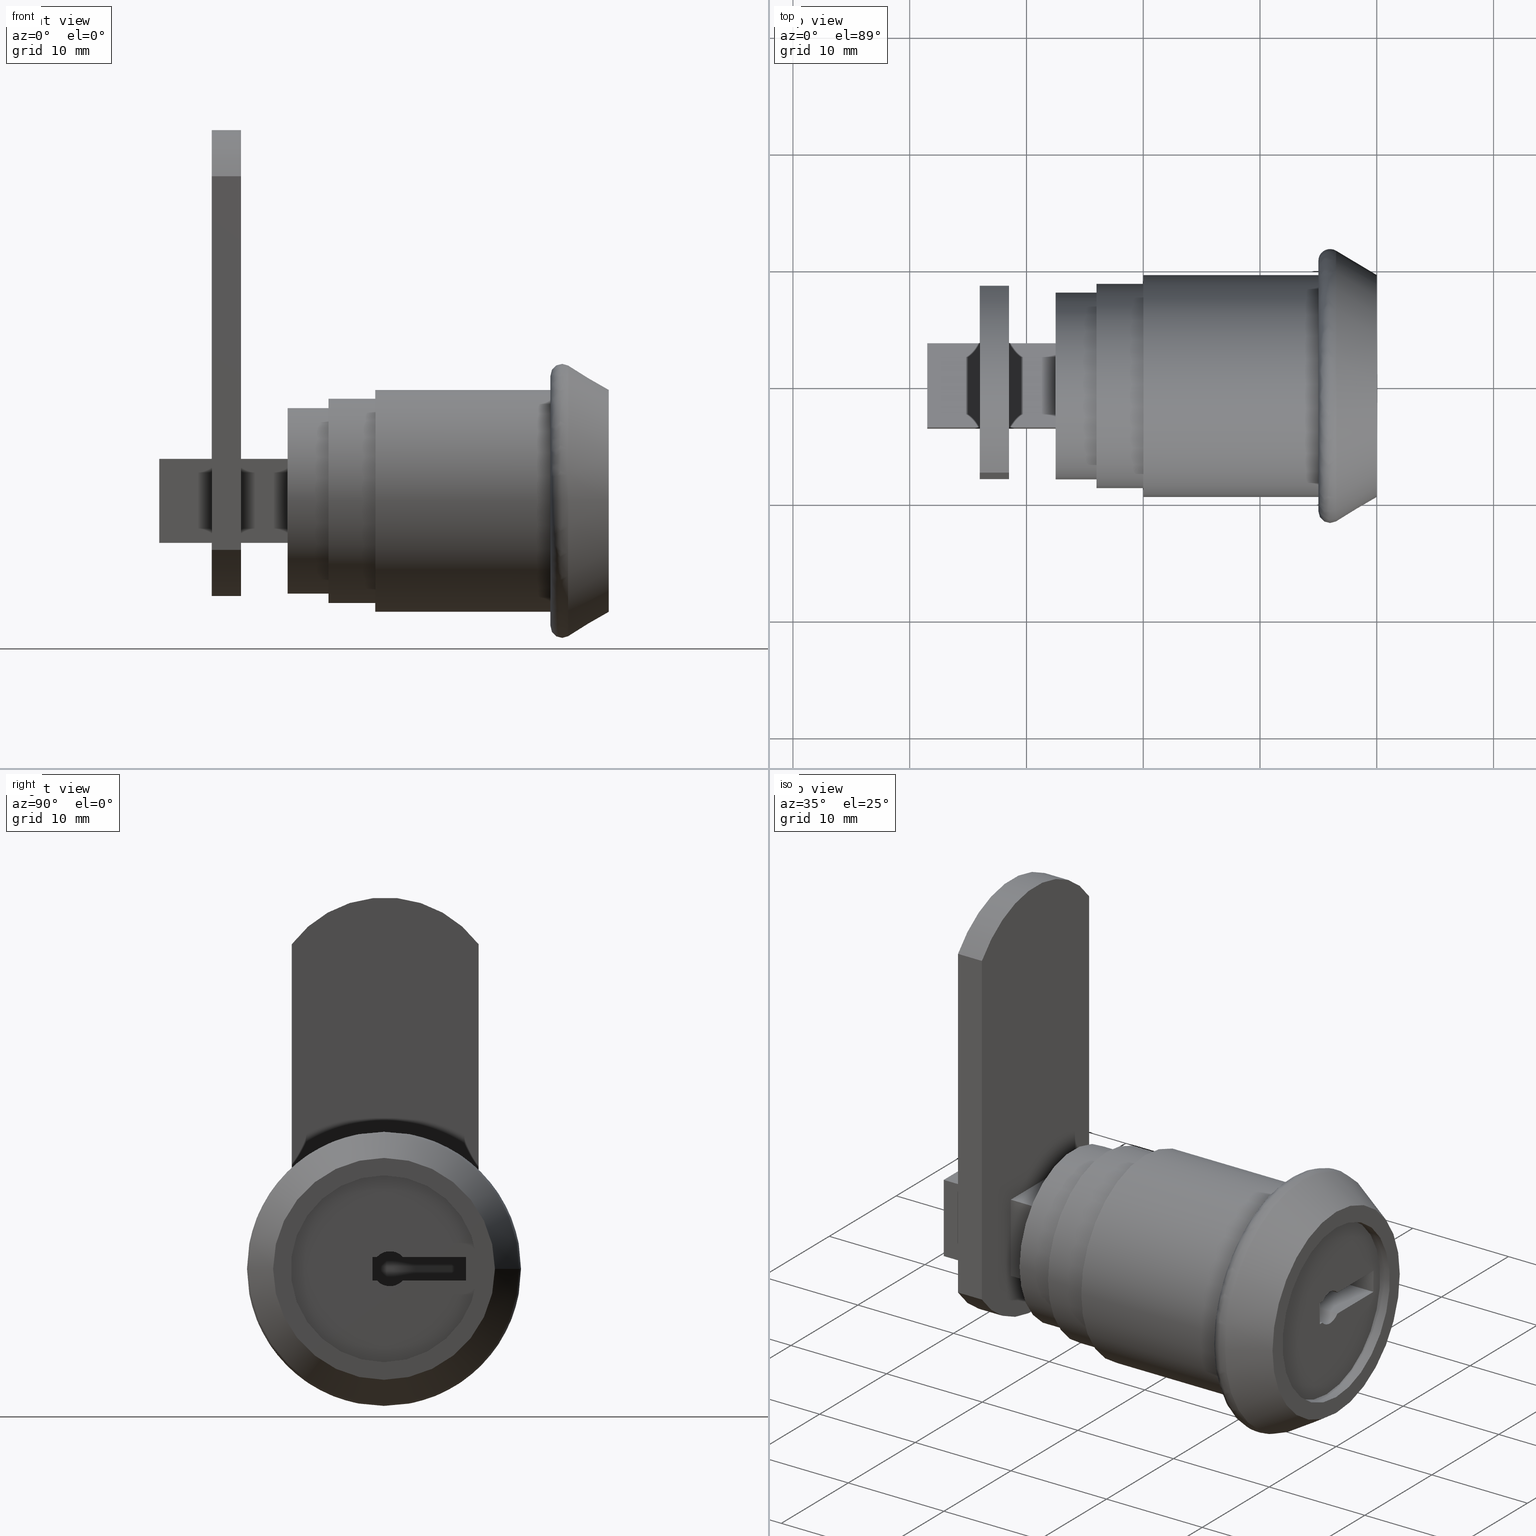
[diagram: canonical four-view strip — front | top / right | iso, engineering-drawing reading convention]
A machine part, canonical four-view strip (front | top / right | iso — engineering-drawing reading convention). The complete STEP part file that produces these views, byte-faithful:
ISO-10303-21;
HEADER;
/****************************************************************
 * Generated by software with PDE/Lib inside                    *
 * PDElib Version v4.4, created Mon 02/23/2004                  *
 * International Technegroup Inc. (www.iti-oh.com)              *
 ****************************************************************/
FILE_DESCRIPTION(('STEP AP203'),'2;1');
FILE_NAME('24.006.00.stp','2011-06-06T18:19:39',(''),(''),'2009.3.110','THINKDESIGN','');
FILE_SCHEMA(('CONFIG_CONTROL_DESIGN'));
ENDSEC;
DATA;
#2=CARTESIAN_POINT('',(-31.500000068700572,-7.900410203737295,-4.195817219909358));
#3=DIRECTION('',(0.0,-1.0,0.0));
#4=DIRECTION('',(0.0,0.0,1.0));
#5=AXIS2_PLACEMENT_3D('',#2,#3,#4);
#6=PLANE('',#5);
#7=CARTESIAN_POINT('',(-31.500000068700572,-7.900410203737295,-4.195817219909358));
#8=VERTEX_POINT('',#7);
#9=CARTESIAN_POINT('',(-31.500000068700558,-7.900410203737295,27.804182780090599));
#10=VERTEX_POINT('',#9);
#11=CARTESIAN_POINT('',(-31.500000068700572,-7.900410203737295,-4.195817219909358));
#12=DIRECTION('',(0.0,0.0,1.0));
#13=VECTOR('',#12,31.999999999999957);
#14=LINE('',#11,#13);
#15=EDGE_CURVE('',#8,#10,#14,.T.);
#16=ORIENTED_EDGE('',*,*,#15,.T.);
#17=CARTESIAN_POINT('',(-34.000000068700558,-7.900410203737295,27.804182780090599));
#18=VERTEX_POINT('',#17);
#19=CARTESIAN_POINT('',(-31.500000068700558,-7.900410203737295,27.804182780090599));
#20=DIRECTION('',(-1.0,0.0,0.0));
#21=VECTOR('',#20,2.500000000000000);
#22=LINE('',#19,#21);
#23=EDGE_CURVE('',#10,#18,#22,.T.);
#24=ORIENTED_EDGE('',*,*,#23,.T.);
#25=CARTESIAN_POINT('',(-34.000000068700572,-7.900410203737295,-4.195817219909358));
#26=VERTEX_POINT('',#25);
#27=CARTESIAN_POINT('',(-34.000000068700572,-7.900410203737295,-4.195817219909358));
#28=DIRECTION('',(0.0,0.0,1.0));
#29=VECTOR('',#28,31.999999999999957);
#30=LINE('',#27,#29);
#31=EDGE_CURVE('',#26,#18,#30,.T.);
#32=ORIENTED_EDGE('',*,*,#31,.F.);
#33=CARTESIAN_POINT('',(-31.500000068700572,-7.900410203737295,-4.195817219909358));
#34=DIRECTION('',(-1.0,0.0,0.0));
#35=VECTOR('',#34,2.500000000000000);
#36=LINE('',#33,#35);
#37=EDGE_CURVE('',#8,#26,#36,.T.);
#38=ORIENTED_EDGE('',*,*,#37,.F.);
#39=EDGE_LOOP('',(#16,#24,#32,#38));
#40=FACE_OUTER_BOUND('',#39,.T.);
#41=ADVANCED_FACE('',(#40),#6,.T.);
#42=CARTESIAN_POINT('',(-31.500000068700558,0.099589796262734,21.804182780090628));
#43=DIRECTION('',(-1.0,0.0,6.123234E-017));
#44=DIRECTION('',(3.673940E-017,-0.800000000000001,0.599999999999999));
#45=AXIS2_PLACEMENT_3D('',#42,#43,#44);
#46=CYLINDRICAL_SURFACE('',#45,10.0);
#47=CARTESIAN_POINT('',(-31.500000068700558,8.099589796262734,27.804182780090599));
#48=VERTEX_POINT('',#47);
#49=CARTESIAN_POINT('',(-31.500000068700558,0.099589796262734,21.804182780090628));
#50=DIRECTION('',(-1.0,0.0,6.123234E-017));
#51=DIRECTION('',(6.123234E-017,0.0,1.0));
#52=AXIS2_PLACEMENT_3D('',#49,#50,#51);
#53=CIRCLE('',#52,10.0);
#54=EDGE_CURVE('',#10,#48,#53,.T.);
#55=ORIENTED_EDGE('',*,*,#54,.T.);
#56=CARTESIAN_POINT('',(-34.000000068700558,8.099589796262734,27.804182780090599));
#57=VERTEX_POINT('',#56);
#58=CARTESIAN_POINT('',(-31.500000068700558,8.099589796262734,27.804182780090599));
#59=DIRECTION('',(-1.0,0.0,0.0));
#60=VECTOR('',#59,2.500000000000000);
#61=LINE('',#58,#60);
#62=EDGE_CURVE('',#48,#57,#61,.T.);
#63=ORIENTED_EDGE('',*,*,#62,.T.);
#64=CARTESIAN_POINT('',(-34.000000068700558,0.099589796262734,21.804182780090628));
#65=DIRECTION('',(-1.0,0.0,6.123234E-017));
#66=DIRECTION('',(6.123234E-017,0.0,1.0));
#67=AXIS2_PLACEMENT_3D('',#64,#65,#66);
#68=CIRCLE('',#67,10.0);
#69=EDGE_CURVE('',#18,#57,#68,.T.);
#70=ORIENTED_EDGE('',*,*,#69,.F.);
#71=ORIENTED_EDGE('',*,*,#23,.F.);
#72=EDGE_LOOP('',(#55,#63,#70,#71));
#73=FACE_OUTER_BOUND('',#72,.T.);
#74=ADVANCED_FACE('',(#73),#46,.T.);
#75=CARTESIAN_POINT('',(-31.500000068700558,8.099589796262734,27.804182780090599));
#76=DIRECTION('',(0.0,1.0,0.0));
#77=DIRECTION('',(0.0,0.0,-1.0));
#78=AXIS2_PLACEMENT_3D('',#75,#76,#77);
#79=PLANE('',#78);
#80=CARTESIAN_POINT('',(-31.500000068700572,8.099589796262762,-4.195817219909344));
#81=VERTEX_POINT('',#80);
#82=CARTESIAN_POINT('',(-31.500000068700569,8.099589796262734,27.804182780090599));
#83=DIRECTION('',(0.0,0.0,-1.0));
#84=VECTOR('',#83,31.999999999999957);
#85=LINE('',#82,#84);
#86=EDGE_CURVE('',#48,#81,#85,.T.);
#87=ORIENTED_EDGE('',*,*,#86,.T.);
#88=CARTESIAN_POINT('',(-34.000000068700572,8.099589796262762,-4.195817219909344));
#89=VERTEX_POINT('',#88);
#90=CARTESIAN_POINT('',(-31.500000068700572,8.099589796262762,-4.195817219909344));
#91=DIRECTION('',(-1.0,0.0,0.0));
#92=VECTOR('',#91,2.500000000000000);
#93=LINE('',#90,#92);
#94=EDGE_CURVE('',#81,#89,#93,.T.);
#95=ORIENTED_EDGE('',*,*,#94,.T.);
#96=CARTESIAN_POINT('',(-34.000000068700572,8.099589796262734,27.804182780090599));
#97=DIRECTION('',(0.0,0.0,-1.0));
#98=VECTOR('',#97,31.999999999999957);
#99=LINE('',#96,#98);
#100=EDGE_CURVE('',#57,#89,#99,.T.);
#101=ORIENTED_EDGE('',*,*,#100,.F.);
#102=ORIENTED_EDGE('',*,*,#62,.F.);
#103=EDGE_LOOP('',(#87,#95,#101,#102));
#104=FACE_OUTER_BOUND('',#103,.T.);
#105=ADVANCED_FACE('',(#104),#79,.T.);
#106=CARTESIAN_POINT('',(-31.500000068700572,0.099589796262734,1.804182780090627));
#107=DIRECTION('',(-1.0,0.0,6.123234E-017));
#108=DIRECTION('',(6.123234E-017,0.0,1.0));
#109=AXIS2_PLACEMENT_3D('',#106,#107,#108);
#110=CYLINDRICAL_SURFACE('',#109,10.0);
#111=CARTESIAN_POINT('',(-31.500000068700572,0.099589796262734,1.804182780090627));
#112=DIRECTION('',(-1.0,0.0,6.123234E-017));
#113=DIRECTION('',(6.123234E-017,0.0,1.0));
#114=AXIS2_PLACEMENT_3D('',#111,#112,#113);
#115=CIRCLE('',#114,10.0);
#116=EDGE_CURVE('',#81,#8,#115,.T.);
#117=ORIENTED_EDGE('',*,*,#116,.T.);
#118=ORIENTED_EDGE('',*,*,#37,.T.);
#119=CARTESIAN_POINT('',(-34.000000068700572,0.099589796262734,1.804182780090627));
#120=DIRECTION('',(-1.0,0.0,6.123234E-017));
#121=DIRECTION('',(6.123234E-017,0.0,1.0));
#122=AXIS2_PLACEMENT_3D('',#119,#120,#121);
#123=CIRCLE('',#122,10.0);
#124=EDGE_CURVE('',#89,#26,#123,.T.);
#125=ORIENTED_EDGE('',*,*,#124,.F.);
#126=ORIENTED_EDGE('',*,*,#94,.F.);
#127=EDGE_LOOP('',(#117,#118,#125,#126));
#128=FACE_OUTER_BOUND('',#127,.T.);
#129=ADVANCED_FACE('',(#128),#110,.T.);
#130=CARTESIAN_POINT('',(-31.500000068700572,-3.100000000000023,-3.599999999999995));
#131=DIRECTION('',(0.0,0.0,1.0));
#132=DIRECTION('',(0.0,1.0,0.0));
#133=AXIS2_PLACEMENT_3D('',#130,#131,#132);
#134=PLANE('',#133);
#135=CARTESIAN_POINT('',(-31.500000068700572,-3.100000000000023,-3.599999999999995));
#136=VERTEX_POINT('',#135);
#137=CARTESIAN_POINT('',(-31.500000068700572,3.099999999999966,-3.599999999999995));
#138=VERTEX_POINT('',#137);
#139=CARTESIAN_POINT('',(-31.500000068700572,-3.100000000000037,-3.599999999999995));
#140=DIRECTION('',(0.0,1.0,0.0));
#141=VECTOR('',#140,6.200000000000003);
#142=LINE('',#139,#141);
#143=EDGE_CURVE('',#136,#138,#142,.T.);
#144=ORIENTED_EDGE('',*,*,#143,.T.);
#145=CARTESIAN_POINT('',(-34.000000068700572,3.099999999999966,-3.599999999999995));
#146=VERTEX_POINT('',#145);
#147=CARTESIAN_POINT('',(-31.500000068700572,3.099999999999966,-3.599999999999995));
#148=DIRECTION('',(-1.0,0.0,0.0));
#149=VECTOR('',#148,2.500000000000000);
#150=LINE('',#147,#149);
#151=EDGE_CURVE('',#138,#146,#150,.T.);
#152=ORIENTED_EDGE('',*,*,#151,.T.);
#153=CARTESIAN_POINT('',(-34.000000068700572,-3.100000000000023,-3.599999999999995));
#154=VERTEX_POINT('',#153);
#155=CARTESIAN_POINT('',(-34.000000068700572,-3.100000000000037,-3.599999999999995));
#156=DIRECTION('',(0.0,1.0,0.0));
#157=VECTOR('',#156,6.200000000000003);
#158=LINE('',#155,#157);
#159=EDGE_CURVE('',#154,#146,#158,.T.);
#160=ORIENTED_EDGE('',*,*,#159,.F.);
#161=CARTESIAN_POINT('',(-31.500000068700572,-3.100000000000023,-3.599999999999995));
#162=DIRECTION('',(-1.0,0.0,0.0));
#163=VECTOR('',#162,2.500000000000000);
#164=LINE('',#161,#163);
#165=EDGE_CURVE('',#136,#154,#164,.T.);
#166=ORIENTED_EDGE('',*,*,#165,.F.);
#167=EDGE_LOOP('',(#144,#152,#160,#166));
#168=FACE_OUTER_BOUND('',#167,.T.);
#169=ADVANCED_FACE('',(#168),#134,.T.);
#170=CARTESIAN_POINT('',(-31.500000068700572,3.099999999999966,-3.099999999999995));
#171=DIRECTION('',(1.0,0.0,-6.123234E-017));
#172=DIRECTION('',(-6.123234E-017,1.010643E-015,-1.0));
#173=AXIS2_PLACEMENT_3D('',#170,#171,#172);
#174=CYLINDRICAL_SURFACE('',#173,0.500000000000000);
#175=CARTESIAN_POINT('',(-31.500000068700572,3.599999999999966,-3.100000000000009));
#176=VERTEX_POINT('',#175);
#177=CARTESIAN_POINT('',(-31.500000068700572,3.099999999999966,-3.099999999999995));
#178=DIRECTION('',(1.0,0.0,-6.123234E-017));
#179=DIRECTION('',(6.123234E-017,0.0,1.0));
#180=AXIS2_PLACEMENT_3D('',#177,#178,#179);
#181=CIRCLE('',#180,0.500000000000000);
#182=EDGE_CURVE('',#138,#176,#181,.T.);
#183=ORIENTED_EDGE('',*,*,#182,.T.);
#184=CARTESIAN_POINT('',(-34.000000068700572,3.599999999999966,-3.100000000000009));
#185=VERTEX_POINT('',#184);
#186=CARTESIAN_POINT('',(-31.500000068700572,3.599999999999966,-3.100000000000009));
#187=DIRECTION('',(-1.0,0.0,0.0));
#188=VECTOR('',#187,2.500000000000000);
#189=LINE('',#186,#188);
#190=EDGE_CURVE('',#176,#185,#189,.T.);
#191=ORIENTED_EDGE('',*,*,#190,.T.);
#192=CARTESIAN_POINT('',(-34.000000068700572,3.099999999999966,-3.099999999999995));
#193=DIRECTION('',(1.0,0.0,-6.123234E-017));
#194=DIRECTION('',(6.123234E-017,0.0,1.0));
#195=AXIS2_PLACEMENT_3D('',#192,#193,#194);
#196=CIRCLE('',#195,0.500000000000000);
#197=EDGE_CURVE('',#146,#185,#196,.T.);
#198=ORIENTED_EDGE('',*,*,#197,.F.);
#199=ORIENTED_EDGE('',*,*,#151,.F.);
#200=EDGE_LOOP('',(#183,#191,#198,#199));
#201=FACE_OUTER_BOUND('',#200,.T.);
#202=ADVANCED_FACE('',(#201),#174,.F.);
#203=CARTESIAN_POINT('',(-31.500000068700572,3.599999999999966,-3.100000000000009));
#204=DIRECTION('',(0.0,-1.0,0.0));
#205=DIRECTION('',(0.0,0.0,1.0));
#206=AXIS2_PLACEMENT_3D('',#203,#204,#205);
#207=PLANE('',#206);
#208=CARTESIAN_POINT('',(-31.500000068700572,3.599999999999966,3.099999999999994));
#209=VERTEX_POINT('',#208);
#210=CARTESIAN_POINT('',(-31.500000068700572,3.599999999999966,-3.100000000000009));
#211=DIRECTION('',(0.0,0.0,1.0));
#212=VECTOR('',#211,6.200000000000003);
#213=LINE('',#210,#212);
#214=EDGE_CURVE('',#176,#209,#213,.T.);
#215=ORIENTED_EDGE('',*,*,#214,.T.);
#216=CARTESIAN_POINT('',(-34.000000068700572,3.599999999999966,3.099999999999994));
#217=VERTEX_POINT('',#216);
#218=CARTESIAN_POINT('',(-31.500000068700572,3.599999999999966,3.099999999999994));
#219=DIRECTION('',(-1.0,0.0,0.0));
#220=VECTOR('',#219,2.500000000000000);
#221=LINE('',#218,#220);
#222=EDGE_CURVE('',#209,#217,#221,.T.);
#223=ORIENTED_EDGE('',*,*,#222,.T.);
#224=CARTESIAN_POINT('',(-34.000000068700572,3.599999999999966,-3.100000000000009));
#225=DIRECTION('',(0.0,0.0,1.0));
#226=VECTOR('',#225,6.200000000000003);
#227=LINE('',#224,#226);
#228=EDGE_CURVE('',#185,#217,#227,.T.);
#229=ORIENTED_EDGE('',*,*,#228,.F.);
#230=ORIENTED_EDGE('',*,*,#190,.F.);
#231=EDGE_LOOP('',(#215,#223,#229,#230));
#232=FACE_OUTER_BOUND('',#231,.T.);
#233=ADVANCED_FACE('',(#232),#207,.T.);
#234=CARTESIAN_POINT('',(-31.500000068700572,3.099999999999966,3.099999999999994));
#235=DIRECTION('',(1.0,0.0,-6.123234E-017));
#236=DIRECTION('',(3.697785E-032,1.0,5.053215E-016));
#237=AXIS2_PLACEMENT_3D('',#234,#235,#236);
#238=CYLINDRICAL_SURFACE('',#237,0.500000000000000);
#239=CARTESIAN_POINT('',(-31.500000068700572,3.099999999999966,3.599999999999994));
#240=VERTEX_POINT('',#239);
#241=CARTESIAN_POINT('',(-31.500000068700572,3.099999999999966,3.099999999999994));
#242=DIRECTION('',(1.0,0.0,-6.123234E-017));
#243=DIRECTION('',(6.123234E-017,0.0,1.0));
#244=AXIS2_PLACEMENT_3D('',#241,#242,#243);
#245=CIRCLE('',#244,0.500000000000000);
#246=EDGE_CURVE('',#209,#240,#245,.T.);
#247=ORIENTED_EDGE('',*,*,#246,.T.);
#248=CARTESIAN_POINT('',(-34.000000068700572,3.099999999999966,3.599999999999994));
#249=VERTEX_POINT('',#248);
#250=CARTESIAN_POINT('',(-31.500000068700572,3.099999999999966,3.599999999999994));
#251=DIRECTION('',(-1.0,0.0,0.0));
#252=VECTOR('',#251,2.500000000000000);
#253=LINE('',#250,#252);
#254=EDGE_CURVE('',#240,#249,#253,.T.);
#255=ORIENTED_EDGE('',*,*,#254,.T.);
#256=CARTESIAN_POINT('',(-34.000000068700572,3.099999999999966,3.099999999999994));
#257=DIRECTION('',(1.0,0.0,-6.123234E-017));
#258=DIRECTION('',(6.123234E-017,0.0,1.0));
#259=AXIS2_PLACEMENT_3D('',#256,#257,#258);
#260=CIRCLE('',#259,0.500000000000000);
#261=EDGE_CURVE('',#217,#249,#260,.T.);
#262=ORIENTED_EDGE('',*,*,#261,.F.);
#263=ORIENTED_EDGE('',*,*,#222,.F.);
#264=EDGE_LOOP('',(#247,#255,#262,#263));
#265=FACE_OUTER_BOUND('',#264,.T.);
#266=ADVANCED_FACE('',(#265),#238,.F.);
#267=CARTESIAN_POINT('',(-31.500000068700572,3.099999999999966,3.599999999999994));
#268=DIRECTION('',(0.0,0.0,-1.0));
#269=DIRECTION('',(0.0,-1.0,0.0));
#270=AXIS2_PLACEMENT_3D('',#267,#268,#269);
#271=PLANE('',#270);
#272=CARTESIAN_POINT('',(-31.500000068700572,-3.100000000000023,3.599999999999994));
#273=VERTEX_POINT('',#272);
#274=CARTESIAN_POINT('',(-31.500000068700572,3.099999999999980,3.599999999999994));
#275=DIRECTION('',(0.0,-1.0,0.0));
#276=VECTOR('',#275,6.200000000000003);
#277=LINE('',#274,#276);
#278=EDGE_CURVE('',#240,#273,#277,.T.);
#279=ORIENTED_EDGE('',*,*,#278,.T.);
#280=CARTESIAN_POINT('',(-34.000000068700572,-3.100000000000023,3.599999999999994));
#281=VERTEX_POINT('',#280);
#282=CARTESIAN_POINT('',(-31.500000068700572,-3.100000000000023,3.599999999999994));
#283=DIRECTION('',(-1.0,0.0,0.0));
#284=VECTOR('',#283,2.500000000000000);
#285=LINE('',#282,#284);
#286=EDGE_CURVE('',#273,#281,#285,.T.);
#287=ORIENTED_EDGE('',*,*,#286,.T.);
#288=CARTESIAN_POINT('',(-34.000000068700572,3.099999999999980,3.599999999999994));
#289=DIRECTION('',(0.0,-1.0,0.0));
#290=VECTOR('',#289,6.200000000000003);
#291=LINE('',#288,#290);
#292=EDGE_CURVE('',#249,#281,#291,.T.);
#293=ORIENTED_EDGE('',*,*,#292,.F.);
#294=ORIENTED_EDGE('',*,*,#254,.F.);
#295=EDGE_LOOP('',(#279,#287,#293,#294));
#296=FACE_OUTER_BOUND('',#295,.T.);
#297=ADVANCED_FACE('',(#296),#271,.T.);
#298=CARTESIAN_POINT('',(-31.500000068700572,-3.100000000000023,3.099999999999994));
#299=DIRECTION('',(1.0,0.0,-6.123234E-017));
#300=DIRECTION('',(6.123234E-017,0.0,1.0));
#301=AXIS2_PLACEMENT_3D('',#298,#299,#300);
#302=CYLINDRICAL_SURFACE('',#301,0.500000000000000);
#303=CARTESIAN_POINT('',(-31.500000068700572,-3.600000000000023,3.100000000000008));
#304=VERTEX_POINT('',#303);
#305=CARTESIAN_POINT('',(-31.500000068700572,-3.100000000000023,3.099999999999994));
#306=DIRECTION('',(1.0,0.0,-6.123234E-017));
#307=DIRECTION('',(6.123234E-017,0.0,1.0));
#308=AXIS2_PLACEMENT_3D('',#305,#306,#307);
#309=CIRCLE('',#308,0.500000000000000);
#310=EDGE_CURVE('',#273,#304,#309,.T.);
#311=ORIENTED_EDGE('',*,*,#310,.T.);
#312=CARTESIAN_POINT('',(-34.000000068700572,-3.600000000000023,3.100000000000008));
#313=VERTEX_POINT('',#312);
#314=CARTESIAN_POINT('',(-31.500000068700572,-3.600000000000023,3.100000000000008));
#315=DIRECTION('',(-1.0,0.0,0.0));
#316=VECTOR('',#315,2.500000000000000);
#317=LINE('',#314,#316);
#318=EDGE_CURVE('',#304,#313,#317,.T.);
#319=ORIENTED_EDGE('',*,*,#318,.T.);
#320=CARTESIAN_POINT('',(-34.000000068700572,-3.100000000000023,3.099999999999994));
#321=DIRECTION('',(1.0,0.0,-6.123234E-017));
#322=DIRECTION('',(6.123234E-017,0.0,1.0));
#323=AXIS2_PLACEMENT_3D('',#320,#321,#322);
#324=CIRCLE('',#323,0.500000000000000);
#325=EDGE_CURVE('',#281,#313,#324,.T.);
#326=ORIENTED_EDGE('',*,*,#325,.F.);
#327=ORIENTED_EDGE('',*,*,#286,.F.);
#328=EDGE_LOOP('',(#311,#319,#326,#327));
#329=FACE_OUTER_BOUND('',#328,.T.);
#330=ADVANCED_FACE('',(#329),#302,.F.);
#331=CARTESIAN_POINT('',(-31.500000068700572,-3.600000000000023,3.100000000000008));
#332=DIRECTION('',(0.0,1.0,0.0));
#333=DIRECTION('',(0.0,0.0,-1.0));
#334=AXIS2_PLACEMENT_3D('',#331,#332,#333);
#335=PLANE('',#334);
#336=CARTESIAN_POINT('',(-31.500000068700572,-3.600000000000023,-3.099999999999995));
#337=VERTEX_POINT('',#336);
#338=CARTESIAN_POINT('',(-31.500000068700572,-3.600000000000023,3.100000000000008));
#339=DIRECTION('',(0.0,0.0,-1.0));
#340=VECTOR('',#339,6.200000000000003);
#341=LINE('',#338,#340);
#342=EDGE_CURVE('',#304,#337,#341,.T.);
#343=ORIENTED_EDGE('',*,*,#342,.T.);
#344=CARTESIAN_POINT('',(-34.000000068700572,-3.600000000000023,-3.099999999999995));
#345=VERTEX_POINT('',#344);
#346=CARTESIAN_POINT('',(-31.500000068700572,-3.600000000000023,-3.099999999999995));
#347=DIRECTION('',(-1.0,0.0,0.0));
#348=VECTOR('',#347,2.500000000000000);
#349=LINE('',#346,#348);
#350=EDGE_CURVE('',#337,#345,#349,.T.);
#351=ORIENTED_EDGE('',*,*,#350,.T.);
#352=CARTESIAN_POINT('',(-34.000000068700572,-3.600000000000023,3.100000000000008));
#353=DIRECTION('',(0.0,0.0,-1.0));
#354=VECTOR('',#353,6.200000000000003);
#355=LINE('',#352,#354);
#356=EDGE_CURVE('',#313,#345,#355,.T.);
#357=ORIENTED_EDGE('',*,*,#356,.F.);
#358=ORIENTED_EDGE('',*,*,#318,.F.);
#359=EDGE_LOOP('',(#343,#351,#357,#358));
#360=FACE_OUTER_BOUND('',#359,.T.);
#361=ADVANCED_FACE('',(#360),#335,.T.);
#362=CARTESIAN_POINT('',(-31.500000068700572,-3.100000000000023,-3.099999999999995));
#363=DIRECTION('',(1.0,0.0,-6.123234E-017));
#364=DIRECTION('',(-1.232595E-031,-1.0,-1.960054E-015));
#365=AXIS2_PLACEMENT_3D('',#362,#363,#364);
#366=CYLINDRICAL_SURFACE('',#365,0.500000000000000);
#367=CARTESIAN_POINT('',(-31.500000068700572,-3.100000000000023,-3.099999999999995));
#368=DIRECTION('',(1.0,0.0,-6.123234E-017));
#369=DIRECTION('',(6.123234E-017,0.0,1.0));
#370=AXIS2_PLACEMENT_3D('',#367,#368,#369);
#371=CIRCLE('',#370,0.500000000000000);
#372=EDGE_CURVE('',#337,#136,#371,.T.);
#373=ORIENTED_EDGE('',*,*,#372,.T.);
#374=ORIENTED_EDGE('',*,*,#165,.T.);
#375=CARTESIAN_POINT('',(-34.000000068700572,-3.100000000000023,-3.099999999999995));
#376=DIRECTION('',(1.0,0.0,-6.123234E-017));
#377=DIRECTION('',(6.123234E-017,0.0,1.0));
#378=AXIS2_PLACEMENT_3D('',#375,#376,#377);
#379=CIRCLE('',#378,0.500000000000000);
#380=EDGE_CURVE('',#345,#154,#379,.T.);
#381=ORIENTED_EDGE('',*,*,#380,.F.);
#382=ORIENTED_EDGE('',*,*,#350,.F.);
#383=EDGE_LOOP('',(#373,#374,#381,#382));
#384=FACE_OUTER_BOUND('',#383,.T.);
#385=ADVANCED_FACE('',(#384),#366,.F.);
#386=CARTESIAN_POINT('',(-31.500000068700572,-9.500530204026461,-12.195937220235692));
#387=DIRECTION('',(-1.0,0.0,0.0));
#388=DIRECTION('',(0.0,0.0,1.0));
#389=AXIS2_PLACEMENT_3D('',#386,#387,#388);
#390=PLANE('',#389);
#391=ORIENTED_EDGE('',*,*,#116,.F.);
#392=ORIENTED_EDGE('',*,*,#86,.F.);
#393=ORIENTED_EDGE('',*,*,#54,.F.);
#394=ORIENTED_EDGE('',*,*,#15,.F.);
#395=EDGE_LOOP('',(#391,#392,#393,#394));
#396=FACE_OUTER_BOUND('',#395,.T.);
#397=ORIENTED_EDGE('',*,*,#372,.F.);
#398=ORIENTED_EDGE('',*,*,#342,.F.);
#399=ORIENTED_EDGE('',*,*,#310,.F.);
#400=ORIENTED_EDGE('',*,*,#278,.F.);
#401=ORIENTED_EDGE('',*,*,#246,.F.);
#402=ORIENTED_EDGE('',*,*,#214,.F.);
#403=ORIENTED_EDGE('',*,*,#182,.F.);
#404=ORIENTED_EDGE('',*,*,#143,.F.);
#405=EDGE_LOOP('',(#397,#398,#399,#400,#401,#402,#403,#404));
#406=FACE_BOUND('',#405,.T.);
#407=ADVANCED_FACE('',(#396,#406),#390,.F.);
#408=CARTESIAN_POINT('',(-34.000000068700572,-9.500530204026461,-12.195937220235692));
#409=DIRECTION('',(-1.0,0.0,0.0));
#410=DIRECTION('',(0.0,0.0,1.0));
#411=AXIS2_PLACEMENT_3D('',#408,#409,#410);
#412=PLANE('',#411);
#413=ORIENTED_EDGE('',*,*,#31,.T.);
#414=ORIENTED_EDGE('',*,*,#69,.T.);
#415=ORIENTED_EDGE('',*,*,#100,.T.);
#416=ORIENTED_EDGE('',*,*,#124,.T.);
#417=EDGE_LOOP('',(#413,#414,#415,#416));
#418=FACE_OUTER_BOUND('',#417,.T.);
#419=ORIENTED_EDGE('',*,*,#159,.T.);
#420=ORIENTED_EDGE('',*,*,#197,.T.);
#421=ORIENTED_EDGE('',*,*,#228,.T.);
#422=ORIENTED_EDGE('',*,*,#261,.T.);
#423=ORIENTED_EDGE('',*,*,#292,.T.);
#424=ORIENTED_EDGE('',*,*,#325,.T.);
#425=ORIENTED_EDGE('',*,*,#356,.T.);
#426=ORIENTED_EDGE('',*,*,#380,.T.);
#427=EDGE_LOOP('',(#419,#420,#421,#422,#423,#424,#425,#426));
#428=FACE_BOUND('',#427,.T.);
#429=ADVANCED_FACE('',(#418,#428),#412,.T.);
#430=CLOSED_SHELL('',(#41,#74,#105,#129,#169,#202,#233,#266,#297,#330,#361,#385,#407,#429));
#431=MANIFOLD_SOLID_BREP('',#430);
#432=CARTESIAN_POINT('',(-27.500000000000014,3.599999999999994,3.600000000000023));
#433=DIRECTION('',(0.0,1.0,0.0));
#434=DIRECTION('',(0.0,0.0,-1.0));
#435=AXIS2_PLACEMENT_3D('',#432,#433,#434);
#436=PLANE('',#435);
#437=CARTESIAN_POINT('',(-27.500000000000014,3.599999999999994,3.600000000000023));
#438=VERTEX_POINT('',#437);
#439=CARTESIAN_POINT('',(-27.500000000000014,3.599999999999994,-3.600000000000009));
#440=VERTEX_POINT('',#439);
#441=CARTESIAN_POINT('',(-27.500000000000014,3.599999999999994,3.600000000000023));
#442=DIRECTION('',(0.0,0.0,-1.0));
#443=VECTOR('',#442,7.200000000000001);
#444=LINE('',#441,#443);
#445=EDGE_CURVE('',#438,#440,#444,.T.);
#446=ORIENTED_EDGE('',*,*,#445,.T.);
#447=CARTESIAN_POINT('',(-38.500000068700572,3.599999999999994,-3.600000000000009));
#448=VERTEX_POINT('',#447);
#449=CARTESIAN_POINT('',(-27.500000000000014,3.599999999999994,-3.600000000000009));
#450=DIRECTION('',(-1.0,0.0,0.0));
#451=VECTOR('',#450,11.000000068700558);
#452=LINE('',#449,#451);
#453=EDGE_CURVE('',#440,#448,#452,.T.);
#454=ORIENTED_EDGE('',*,*,#453,.T.);
#455=CARTESIAN_POINT('',(-38.500000068700572,3.599999999999994,3.600000000000023));
#456=VERTEX_POINT('',#455);
#457=CARTESIAN_POINT('',(-38.500000068700572,3.599999999999994,3.600000000000023));
#458=DIRECTION('',(0.0,0.0,-1.0));
#459=VECTOR('',#458,7.200000000000001);
#460=LINE('',#457,#459);
#461=EDGE_CURVE('',#456,#448,#460,.T.);
#462=ORIENTED_EDGE('',*,*,#461,.F.);
#463=CARTESIAN_POINT('',(-27.500000000000014,3.599999999999994,3.600000000000023));
#464=DIRECTION('',(-1.0,0.0,0.0));
#465=VECTOR('',#464,11.000000068700558);
#466=LINE('',#463,#465);
#467=EDGE_CURVE('',#438,#456,#466,.T.);
#468=ORIENTED_EDGE('',*,*,#467,.F.);
#469=EDGE_LOOP('',(#446,#454,#462,#468));
#470=FACE_OUTER_BOUND('',#469,.T.);
#471=ADVANCED_FACE('',(#470),#436,.T.);
#472=CARTESIAN_POINT('',(-27.500000000000014,3.599999999999994,-3.600000000000009));
#473=DIRECTION('',(0.0,0.0,-1.0));
#474=DIRECTION('',(0.0,-1.0,0.0));
#475=AXIS2_PLACEMENT_3D('',#472,#473,#474);
#476=PLANE('',#475);
#477=CARTESIAN_POINT('',(-27.500000000000014,-3.600000000000023,-3.599999999999994));
#478=VERTEX_POINT('',#477);
#479=CARTESIAN_POINT('',(-27.500000000000014,3.599999999999994,-3.600000000000009));
#480=DIRECTION('',(0.0,-1.0,0.0));
#481=VECTOR('',#480,7.199999999999999);
#482=LINE('',#479,#481);
#483=EDGE_CURVE('',#440,#478,#482,.T.);
#484=ORIENTED_EDGE('',*,*,#483,.T.);
#485=CARTESIAN_POINT('',(-38.500000068700572,-3.600000000000023,-3.599999999999994));
#486=VERTEX_POINT('',#485);
#487=CARTESIAN_POINT('',(-27.500000000000014,-3.600000000000023,-3.599999999999994));
#488=DIRECTION('',(-1.0,0.0,0.0));
#489=VECTOR('',#488,11.000000068700558);
#490=LINE('',#487,#489);
#491=EDGE_CURVE('',#478,#486,#490,.T.);
#492=ORIENTED_EDGE('',*,*,#491,.T.);
#493=CARTESIAN_POINT('',(-38.500000068700572,3.599999999999994,-3.600000000000009));
#494=DIRECTION('',(0.0,-1.0,0.0));
#495=VECTOR('',#494,7.199999999999999);
#496=LINE('',#493,#495);
#497=EDGE_CURVE('',#448,#486,#496,.T.);
#498=ORIENTED_EDGE('',*,*,#497,.F.);
#499=ORIENTED_EDGE('',*,*,#453,.F.);
#500=EDGE_LOOP('',(#484,#492,#498,#499));
#501=FACE_OUTER_BOUND('',#500,.T.);
#502=ADVANCED_FACE('',(#501),#476,.T.);
#503=CARTESIAN_POINT('',(-27.500000000000014,-3.600000000000023,-3.599999999999994));
#504=DIRECTION('',(0.0,-1.0,0.0));
#505=DIRECTION('',(0.0,0.0,1.0));
#506=AXIS2_PLACEMENT_3D('',#503,#504,#505);
#507=PLANE('',#506);
#508=CARTESIAN_POINT('',(-27.500000000000014,-3.600000000000023,3.599999999999994));
#509=VERTEX_POINT('',#508);
#510=CARTESIAN_POINT('',(-27.500000000000014,-3.600000000000023,-3.599999999999994));
#511=DIRECTION('',(0.0,0.0,1.0));
#512=VECTOR('',#511,7.199999999999999);
#513=LINE('',#510,#512);
#514=EDGE_CURVE('',#478,#509,#513,.T.);
#515=ORIENTED_EDGE('',*,*,#514,.T.);
#516=CARTESIAN_POINT('',(-38.500000068700572,-3.600000000000023,3.599999999999994));
#517=VERTEX_POINT('',#516);
#518=CARTESIAN_POINT('',(-27.500000000000014,-3.600000000000023,3.599999999999994));
#519=DIRECTION('',(-1.0,0.0,0.0));
#520=VECTOR('',#519,11.000000068700558);
#521=LINE('',#518,#520);
#522=EDGE_CURVE('',#509,#517,#521,.T.);
#523=ORIENTED_EDGE('',*,*,#522,.T.);
#524=CARTESIAN_POINT('',(-38.500000068700572,-3.600000000000023,-3.599999999999994));
#525=DIRECTION('',(0.0,0.0,1.0));
#526=VECTOR('',#525,7.199999999999999);
#527=LINE('',#524,#526);
#528=EDGE_CURVE('',#486,#517,#527,.T.);
#529=ORIENTED_EDGE('',*,*,#528,.F.);
#530=ORIENTED_EDGE('',*,*,#491,.F.);
#531=EDGE_LOOP('',(#515,#523,#529,#530));
#532=FACE_OUTER_BOUND('',#531,.T.);
#533=ADVANCED_FACE('',(#532),#507,.T.);
#534=CARTESIAN_POINT('',(-27.500000000000014,-3.600000000000023,3.599999999999994));
#535=DIRECTION('',(0.0,0.0,1.0));
#536=DIRECTION('',(0.0,1.0,0.0));
#537=AXIS2_PLACEMENT_3D('',#534,#535,#536);
#538=PLANE('',#537);
#539=CARTESIAN_POINT('',(-27.500000000000014,-3.600000000000023,3.599999999999994));
#540=DIRECTION('',(0.0,1.0,0.0));
#541=VECTOR('',#540,7.200000000000000);
#542=LINE('',#539,#541);
#543=EDGE_CURVE('',#509,#438,#542,.T.);
#544=ORIENTED_EDGE('',*,*,#543,.T.);
#545=ORIENTED_EDGE('',*,*,#467,.T.);
#546=CARTESIAN_POINT('',(-38.500000068700572,-3.600000000000023,3.599999999999994));
#547=DIRECTION('',(0.0,1.0,0.0));
#548=VECTOR('',#547,7.200000000000000);
#549=LINE('',#546,#548);
#550=EDGE_CURVE('',#517,#456,#549,.T.);
#551=ORIENTED_EDGE('',*,*,#550,.F.);
#552=ORIENTED_EDGE('',*,*,#522,.F.);
#553=EDGE_LOOP('',(#544,#545,#551,#552));
#554=FACE_OUTER_BOUND('',#553,.T.);
#555=ADVANCED_FACE('',(#554),#538,.T.);
#556=CARTESIAN_POINT('',(-27.500000000000014,-4.320002148903711,-4.320002148903711));
#557=DIRECTION('',(-1.0,0.0,0.0));
#558=DIRECTION('',(0.0,0.0,1.0));
#559=AXIS2_PLACEMENT_3D('',#556,#557,#558);
#560=PLANE('',#559);
#561=ORIENTED_EDGE('',*,*,#543,.F.);
#562=ORIENTED_EDGE('',*,*,#514,.F.);
#563=ORIENTED_EDGE('',*,*,#483,.F.);
#564=ORIENTED_EDGE('',*,*,#445,.F.);
#565=EDGE_LOOP('',(#561,#562,#563,#564));
#566=FACE_OUTER_BOUND('',#565,.T.);
#567=ADVANCED_FACE('',(#566),#560,.F.);
#568=CARTESIAN_POINT('',(-38.500000068700572,-4.320002148903711,-4.320002148903711));
#569=DIRECTION('',(-1.0,0.0,0.0));
#570=DIRECTION('',(0.0,0.0,1.0));
#571=AXIS2_PLACEMENT_3D('',#568,#569,#570);
#572=PLANE('',#571);
#573=ORIENTED_EDGE('',*,*,#461,.T.);
#574=ORIENTED_EDGE('',*,*,#497,.T.);
#575=ORIENTED_EDGE('',*,*,#528,.T.);
#576=ORIENTED_EDGE('',*,*,#550,.T.);
#577=EDGE_LOOP('',(#573,#574,#575,#576));
#578=FACE_OUTER_BOUND('',#577,.T.);
#579=ADVANCED_FACE('',(#578),#572,.T.);
#580=CLOSED_SHELL('',(#471,#502,#533,#555,#567,#579));
#581=MANIFOLD_SOLID_BREP('',#580);
#582=CARTESIAN_POINT('',(0.0,-19.000000000000057,-19.000000000000057));
#583=DIRECTION('',(-1.0,0.0,0.0));
#584=DIRECTION('',(0.0,0.0,1.0));
#585=AXIS2_PLACEMENT_3D('',#582,#583,#584);
#586=PLANE('',#585);
#587=CARTESIAN_POINT('',(0.0,9.500000000000028,0.0));
#588=VERTEX_POINT('',#587);
#589=CARTESIAN_POINT('',(0.0,-9.500000000000028,0.0));
#590=VERTEX_POINT('',#589);
#591=CARTESIAN_POINT('',(0.0,0.0,0.0));
#592=DIRECTION('',(1.0,0.0,0.0));
#593=DIRECTION('',(0.0,1.0,0.0));
#594=AXIS2_PLACEMENT_3D('',#591,#592,#593);
#595=CIRCLE('',#594,9.500000000000028);
#596=EDGE_CURVE('',#588,#590,#595,.T.);
#597=ORIENTED_EDGE('',*,*,#596,.T.);
#598=CARTESIAN_POINT('',(0.0,0.0,0.0));
#599=DIRECTION('',(1.0,0.0,0.0));
#600=DIRECTION('',(0.0,1.0,0.0));
#601=AXIS2_PLACEMENT_3D('',#598,#599,#600);
#602=CIRCLE('',#601,9.500000000000028);
#603=EDGE_CURVE('',#590,#588,#602,.T.);
#604=ORIENTED_EDGE('',*,*,#603,.T.);
#605=EDGE_LOOP('',(#597,#604));
#606=FACE_OUTER_BOUND('',#605,.T.);
#607=CARTESIAN_POINT('',(0.0,0.0,-8.0));
#608=VERTEX_POINT('',#607);
#609=CARTESIAN_POINT('',(0.0,0.0,8.0));
#610=VERTEX_POINT('',#609);
#611=CARTESIAN_POINT('',(0.0,0.0,0.0));
#612=DIRECTION('',(1.0,0.0,0.0));
#613=DIRECTION('',(0.0,0.0,1.0));
#614=AXIS2_PLACEMENT_3D('',#611,#612,#613);
#615=CIRCLE('',#614,8.0);
#616=EDGE_CURVE('',#608,#610,#615,.T.);
#617=ORIENTED_EDGE('',*,*,#616,.F.);
#618=CARTESIAN_POINT('',(0.0,0.0,0.0));
#619=DIRECTION('',(1.0,0.0,0.0));
#620=DIRECTION('',(0.0,0.0,1.0));
#621=AXIS2_PLACEMENT_3D('',#618,#619,#620);
#622=CIRCLE('',#621,8.0);
#623=EDGE_CURVE('',#610,#608,#622,.T.);
#624=ORIENTED_EDGE('',*,*,#623,.F.);
#625=EDGE_LOOP('',(#617,#624));
#626=FACE_BOUND('',#625,.T.);
#627=ADVANCED_FACE('',(#606,#626),#586,.F.);
#628=CARTESIAN_POINT('',(0.0,9.500000000000028,0.0));
#629=CARTESIAN_POINT('',(0.0,9.500000000000028,9.500000000000028));
#630=CARTESIAN_POINT('',(0.0,0.0,9.500000000000028));
#631=CARTESIAN_POINT('',(0.0,-9.500000000000028,9.500000000000028));
#632=CARTESIAN_POINT('',(0.0,-9.500000000000028,0.0));
#633=CARTESIAN_POINT('',(0.0,-9.500000000000028,-9.500000000000028));
#634=CARTESIAN_POINT('',(0.0,0.0,-9.500000000000028));
#635=CARTESIAN_POINT('',(0.0,9.500000000000028,-9.500000000000028));
#636=CARTESIAN_POINT('',(0.0,9.500000000000028,0.0));
#637=CARTESIAN_POINT('',(-3.485504244572439,11.591302546743464,0.0));
#638=CARTESIAN_POINT('',(-3.485504244572439,11.591302546743464,11.591302546743464));
#639=CARTESIAN_POINT('',(-3.485504244572439,0.0,11.591302546743464));
#640=CARTESIAN_POINT('',(-3.485504244572439,-11.591302546743464,11.591302546743464));
#641=CARTESIAN_POINT('',(-3.485504244572439,-11.591302546743464,0.0));
#642=CARTESIAN_POINT('',(-3.485504244572439,-11.591302546743464,-11.591302546743464));
#643=CARTESIAN_POINT('',(-3.485504244572439,0.0,-11.591302546743464));
#644=CARTESIAN_POINT('',(-3.485504244572439,11.591302546743464,-11.591302546743464));
#645=CARTESIAN_POINT('',(-3.485504244572439,11.591302546743464,0.0));
#653=(BOUNDED_SURFACE()B_SPLINE_SURFACE(2,1,((#628,#637),(#629,#638),(#630,#639),(#631,#640),(#632,#641),(#633,#642),(#634,#643),(#635,#644),(#636,#645)),.UNSPECIFIED.,.T.,.F.,.U.)B_SPLINE_SURFACE_WITH_KNOTS((3,2,2,2,3),(2,2),(0.0,0.250000000000000,0.500000000000000,0.750000000000000,1.0),(0.0,4.064761515876186),.UNSPECIFIED.)GEOMETRIC_REPRESENTATION_ITEM()RATIONAL_B_SPLINE_SURFACE(((1.0,1.0),(0.707106781186548,0.707106781186548),(1.0,1.0),(0.707106781186548,0.707106781186548),(1.0,1.0),(0.707106781186548,0.707106781186548),(1.0,1.0),(0.707106781186548,0.707106781186548),(1.0,1.0)))REPRESENTATION_ITEM('')SURFACE());
#654=CARTESIAN_POINT('',(-3.485504244572894,11.591302546742725,0.0));
#655=VERTEX_POINT('',#654);
#656=CARTESIAN_POINT('',(0.0,9.500000000000028,0.0));
#657=DIRECTION('',(-0.857492925712547,0.514495755427521,0.0));
#658=VECTOR('',#657,4.064761515876186);
#659=LINE('',#656,#658);
#660=EDGE_CURVE('',#588,#655,#659,.T.);
#661=ORIENTED_EDGE('',*,*,#660,.T.);
#662=CARTESIAN_POINT('',(-3.485504244572894,-11.591302546742725,0.0));
#663=VERTEX_POINT('',#662);
#664=CARTESIAN_POINT('',(-3.485504244572894,0.0,0.0));
#665=DIRECTION('',(1.0,0.0,0.0));
#666=DIRECTION('',(0.0,1.0,0.0));
#667=AXIS2_PLACEMENT_3D('',#664,#665,#666);
#668=CIRCLE('',#667,11.591302546742725);
#669=EDGE_CURVE('',#655,#663,#668,.T.);
#670=ORIENTED_EDGE('',*,*,#669,.T.);
#671=CARTESIAN_POINT('',(-3.485504244572894,0.0,0.0));
#672=DIRECTION('',(1.0,0.0,0.0));
#673=DIRECTION('',(0.0,1.0,0.0));
#674=AXIS2_PLACEMENT_3D('',#671,#672,#673);
#675=CIRCLE('',#674,11.591302546742725);
#676=EDGE_CURVE('',#663,#655,#675,.T.);
#677=ORIENTED_EDGE('',*,*,#676,.T.);
#678=ORIENTED_EDGE('',*,*,#660,.F.);
#679=ORIENTED_EDGE('',*,*,#603,.F.);
#680=ORIENTED_EDGE('',*,*,#596,.F.);
#681=EDGE_LOOP('',(#661,#670,#677,#678,#679,#680));
#682=FACE_OUTER_BOUND('',#681,.T.);
#683=ADVANCED_FACE('',(#682),#653,.F.);
#684=CARTESIAN_POINT('',(-3.485504244572894,11.591302546742725,0.0));
#685=CARTESIAN_POINT('',(-3.485504244572894,11.591302546742725,11.591302546742725));
#686=CARTESIAN_POINT('',(-3.485504244572894,0.0,11.591302546742725));
#687=CARTESIAN_POINT('',(-3.485504244572894,-11.591302546742725,11.591302546742725));
#688=CARTESIAN_POINT('',(-3.485504244572894,-11.591302546742725,0.0));
#689=CARTESIAN_POINT('',(-3.485504244572894,-11.591302546742725,-11.591302546742725));
#690=CARTESIAN_POINT('',(-3.485504244572894,0.0,-11.591302546742725));
#691=CARTESIAN_POINT('',(-3.485504244572894,11.591302546742725,-11.591302546742725));
#692=CARTESIAN_POINT('',(-3.485504244572894,11.591302546742725,0.0));
#693=CARTESIAN_POINT('',(-3.985397629968073,11.891238577978624,0.0));
#694=CARTESIAN_POINT('',(-3.985397629968073,11.891238577978624,11.891238577978624));
#695=CARTESIAN_POINT('',(-3.985397629968073,0.0,11.891238577978624));
#696=CARTESIAN_POINT('',(-3.985397629968073,-11.891238577978624,11.891238577978624));
#697=CARTESIAN_POINT('',(-3.985397629968073,-11.891238577978624,0.0));
#698=CARTESIAN_POINT('',(-3.985397629968073,-11.891238577978624,-11.891238577978624));
#699=CARTESIAN_POINT('',(-3.985397629968073,0.0,-11.891238577978624));
#700=CARTESIAN_POINT('',(-3.985397629968073,11.891238577978624,-11.891238577978624));
#701=CARTESIAN_POINT('',(-3.985397629968073,11.891238577978624,0.0));
#702=CARTESIAN_POINT('',(-4.492698814984262,11.604009527782509,0.0));
#703=CARTESIAN_POINT('',(-4.492698814984262,11.604009527782509,11.604009527782509));
#704=CARTESIAN_POINT('',(-4.492698814984262,0.0,11.604009527782509));
#705=CARTESIAN_POINT('',(-4.492698814984262,-11.604009527782509,11.604009527782509));
#706=CARTESIAN_POINT('',(-4.492698814984262,-11.604009527782509,0.0));
#707=CARTESIAN_POINT('',(-4.492698814984262,-11.604009527782509,-11.604009527782509));
#708=CARTESIAN_POINT('',(-4.492698814984262,0.0,-11.604009527782509));
#709=CARTESIAN_POINT('',(-4.492698814984262,11.604009527782509,-11.604009527782509));
#710=CARTESIAN_POINT('',(-4.492698814984262,11.604009527782509,0.0));
#711=CARTESIAN_POINT('',(-5.000000000000455,11.316780477586391,0.0));
#712=CARTESIAN_POINT('',(-5.000000000000455,11.316780477586391,11.316780477586391));
#713=CARTESIAN_POINT('',(-5.000000000000455,0.0,11.316780477586391));
#714=CARTESIAN_POINT('',(-5.000000000000455,-11.316780477586391,11.316780477586391));
#715=CARTESIAN_POINT('',(-5.000000000000455,-11.316780477586391,0.0));
#716=CARTESIAN_POINT('',(-5.000000000000455,-11.316780477586391,-11.316780477586391));
#717=CARTESIAN_POINT('',(-5.000000000000455,0.0,-11.316780477586391));
#718=CARTESIAN_POINT('',(-5.000000000000455,11.316780477586391,-11.316780477586391));
#719=CARTESIAN_POINT('',(-5.000000000000455,11.316780477586391,0.0));
#720=CARTESIAN_POINT('',(-5.000000000000885,10.733809621028882,0.0));
#721=CARTESIAN_POINT('',(-5.000000000000885,10.733809621028882,10.733809621028882));
#722=CARTESIAN_POINT('',(-5.000000000000885,0.0,10.733809621028882));
#723=CARTESIAN_POINT('',(-5.000000000000885,-10.733809621028882,10.733809621028882));
#724=CARTESIAN_POINT('',(-5.000000000000885,-10.733809621028882,0.0));
#725=CARTESIAN_POINT('',(-5.000000000000885,-10.733809621028882,-10.733809621028882));
#726=CARTESIAN_POINT('',(-5.000000000000885,0.0,-10.733809621028882));
#727=CARTESIAN_POINT('',(-5.000000000000885,10.733809621028882,-10.733809621028882));
#728=CARTESIAN_POINT('',(-5.000000000000885,10.733809621028882,0.0));
#736=(BOUNDED_SURFACE()B_SPLINE_SURFACE(2,2,((#684,#693,#702,#711,#720),(#685,#694,#703,#712,#721),(#686,#695,#704,#713,#722),(#687,#696,#705,#714,#723),(#688,#697,#706,#715,#724),(#689,#698,#707,#716,#725),(#690,#699,#708,#717,#726),(#691,#700,#709,#718,#727),(#692,#701,#710,#719,#728)),.UNSPECIFIED.,.T.,.F.,.U.)B_SPLINE_SURFACE_WITH_KNOTS((3,2,2,2,3),(3,2,3),(0.0,0.250000000000000,0.500000000000000,0.750000000000000,1.0),(0.0,0.500000000000000,1.0),.UNSPECIFIED.)GEOMETRIC_REPRESENTATION_ITEM()RATIONAL_B_SPLINE_SURFACE(((1.0,0.863915162207692,1.0,0.863915162207692,1.0),(0.707106781186548,0.610880269566935,0.707106781186548,0.610880269566935,0.707106781186548),(1.0,0.863915162207692,1.0,0.863915162207692,1.0),(0.707106781186548,0.610880269566935,0.707106781186548,0.610880269566935,0.707106781186548),(1.0,0.863915162207692,1.0,0.863915162207692,1.0),(0.707106781186548,0.610880269566935,0.707106781186548,0.610880269566935,0.707106781186548),(1.0,0.863915162207692,1.0,0.863915162207692,1.0),(0.707106781186548,0.610880269566935,0.707106781186548,0.610880269566935,0.707106781186548),(1.0,0.863915162207692,1.0,0.863915162207692,1.0)))REPRESENTATION_ITEM('')SURFACE());
#737=CARTESIAN_POINT('',(-5.000000000000398,10.733809621028882,0.0));
#738=VERTEX_POINT('',#737);
#739=CARTESIAN_POINT('',(-3.999999999999573,10.733809621028144,0.0));
#740=DIRECTION('',(0.0,0.0,1.0));
#741=DIRECTION('',(0.514495755426005,0.857492925713457,0.0));
#742=AXIS2_PLACEMENT_3D('',#739,#740,#741);
#743=CIRCLE('',#742,1.000000000001311);
#744=EDGE_CURVE('',#655,#738,#743,.T.);
#745=ORIENTED_EDGE('',*,*,#744,.T.);
#746=CARTESIAN_POINT('',(-5.000000000000398,-10.733809621028882,0.0));
#747=VERTEX_POINT('',#746);
#748=CARTESIAN_POINT('',(-5.000000000000398,0.0,0.0));
#749=DIRECTION('',(1.0,0.0,0.0));
#750=DIRECTION('',(0.0,1.0,0.0));
#751=AXIS2_PLACEMENT_3D('',#748,#749,#750);
#752=CIRCLE('',#751,10.733809621028882);
#753=EDGE_CURVE('',#738,#747,#752,.T.);
#754=ORIENTED_EDGE('',*,*,#753,.T.);
#755=CARTESIAN_POINT('',(-5.000000000000398,0.0,0.0));
#756=DIRECTION('',(1.0,0.0,0.0));
#757=DIRECTION('',(0.0,1.0,0.0));
#758=AXIS2_PLACEMENT_3D('',#755,#756,#757);
#759=CIRCLE('',#758,10.733809621028882);
#760=EDGE_CURVE('',#747,#738,#759,.T.);
#761=ORIENTED_EDGE('',*,*,#760,.T.);
#762=ORIENTED_EDGE('',*,*,#744,.F.);
#763=ORIENTED_EDGE('',*,*,#676,.F.);
#764=ORIENTED_EDGE('',*,*,#669,.F.);
#765=EDGE_LOOP('',(#745,#754,#761,#762,#763,#764));
#766=FACE_OUTER_BOUND('',#765,.T.);
#767=ADVANCED_FACE('',(#766),#736,.F.);
#768=CARTESIAN_POINT('',(-5.000000000000398,21.467619242057765,-21.467619242057765));
#769=DIRECTION('',(1.0,0.0,0.0));
#770=DIRECTION('',(0.0,0.0,1.0));
#771=AXIS2_PLACEMENT_3D('',#768,#769,#770);
#772=PLANE('',#771);
#773=ORIENTED_EDGE('',*,*,#760,.F.);
#774=ORIENTED_EDGE('',*,*,#753,.F.);
#775=EDGE_LOOP('',(#773,#774));
#776=FACE_OUTER_BOUND('',#775,.T.);
#777=CARTESIAN_POINT('',(-5.000000000000426,9.500000000000739,0.0));
#778=VERTEX_POINT('',#777);
#779=CARTESIAN_POINT('',(-5.000000000000426,-9.500000000000739,0.0));
#780=VERTEX_POINT('',#779);
#781=CARTESIAN_POINT('',(-5.000000000000426,0.0,0.0));
#782=DIRECTION('',(1.0,0.0,0.0));
#783=DIRECTION('',(0.0,1.0,0.0));
#784=AXIS2_PLACEMENT_3D('',#781,#782,#783);
#785=CIRCLE('',#784,9.500000000000739);
#786=EDGE_CURVE('',#778,#780,#785,.T.);
#787=ORIENTED_EDGE('',*,*,#786,.T.);
#788=CARTESIAN_POINT('',(-5.000000000000426,0.0,0.0));
#789=DIRECTION('',(1.0,0.0,0.0));
#790=DIRECTION('',(0.0,1.0,0.0));
#791=AXIS2_PLACEMENT_3D('',#788,#789,#790);
#792=CIRCLE('',#791,9.500000000000739);
#793=EDGE_CURVE('',#780,#778,#792,.T.);
#794=ORIENTED_EDGE('',*,*,#793,.T.);
#795=EDGE_LOOP('',(#787,#794));
#796=FACE_BOUND('',#795,.T.);
#797=ADVANCED_FACE('',(#776,#796),#772,.F.);
#798=CARTESIAN_POINT('',(-5.000000000000426,0.0,0.0));
#799=DIRECTION('',(1.0,0.0,0.0));
#800=DIRECTION('',(0.0,1.0,0.0));
#801=AXIS2_PLACEMENT_3D('',#798,#799,#800);
#802=CYLINDRICAL_SURFACE('',#801,9.500000000000739);
#803=CARTESIAN_POINT('',(-19.999999999999986,9.500000000000739,0.0));
#804=VERTEX_POINT('',#803);
#805=CARTESIAN_POINT('',(-5.000000000000426,9.500000000000739,0.0));
#806=DIRECTION('',(-1.0,0.0,0.0));
#807=VECTOR('',#806,14.999999999999559);
#808=LINE('',#805,#807);
#809=EDGE_CURVE('',#778,#804,#808,.T.);
#810=ORIENTED_EDGE('',*,*,#809,.T.);
#811=CARTESIAN_POINT('',(-19.999999999999986,-9.500000000000739,0.0));
#812=VERTEX_POINT('',#811);
#813=CARTESIAN_POINT('',(-19.999999999999986,0.0,0.0));
#814=DIRECTION('',(1.0,0.0,0.0));
#815=DIRECTION('',(0.0,1.0,0.0));
#816=AXIS2_PLACEMENT_3D('',#813,#814,#815);
#817=CIRCLE('',#816,9.500000000000739);
#818=EDGE_CURVE('',#804,#812,#817,.T.);
#819=ORIENTED_EDGE('',*,*,#818,.T.);
#820=CARTESIAN_POINT('',(-19.999999999999986,0.0,0.0));
#821=DIRECTION('',(1.0,0.0,0.0));
#822=DIRECTION('',(0.0,1.0,0.0));
#823=AXIS2_PLACEMENT_3D('',#820,#821,#822);
#824=CIRCLE('',#823,9.500000000000739);
#825=EDGE_CURVE('',#812,#804,#824,.T.);
#826=ORIENTED_EDGE('',*,*,#825,.T.);
#827=ORIENTED_EDGE('',*,*,#809,.F.);
#828=ORIENTED_EDGE('',*,*,#793,.F.);
#829=ORIENTED_EDGE('',*,*,#786,.F.);
#830=EDGE_LOOP('',(#810,#819,#826,#827,#828,#829));
#831=FACE_OUTER_BOUND('',#830,.T.);
#832=ADVANCED_FACE('',(#831),#802,.T.);
#833=CARTESIAN_POINT('',(-19.999999999999986,19.000000000001478,-19.000000000001478));
#834=DIRECTION('',(1.0,0.0,0.0));
#835=DIRECTION('',(0.0,0.0,1.0));
#836=AXIS2_PLACEMENT_3D('',#833,#834,#835);
#837=PLANE('',#836);
#838=ORIENTED_EDGE('',*,*,#825,.F.);
#839=ORIENTED_EDGE('',*,*,#818,.F.);
#840=EDGE_LOOP('',(#838,#839));
#841=FACE_OUTER_BOUND('',#840,.T.);
#842=CARTESIAN_POINT('',(-19.999999999999986,8.750000000000000,0.0));
#843=VERTEX_POINT('',#842);
#844=CARTESIAN_POINT('',(-19.999999999999986,-8.750000000000000,0.0));
#845=VERTEX_POINT('',#844);
#846=CARTESIAN_POINT('',(-19.999999999999986,0.0,0.0));
#847=DIRECTION('',(1.0,0.0,0.0));
#848=DIRECTION('',(0.0,1.0,0.0));
#849=AXIS2_PLACEMENT_3D('',#846,#847,#848);
#850=CIRCLE('',#849,8.750000000000000);
#851=EDGE_CURVE('',#843,#845,#850,.T.);
#852=ORIENTED_EDGE('',*,*,#851,.T.);
#853=CARTESIAN_POINT('',(-19.999999999999986,0.0,0.0));
#854=DIRECTION('',(1.0,0.0,0.0));
#855=DIRECTION('',(0.0,1.0,0.0));
#856=AXIS2_PLACEMENT_3D('',#853,#854,#855);
#857=CIRCLE('',#856,8.750000000000000);
#858=EDGE_CURVE('',#845,#843,#857,.T.);
#859=ORIENTED_EDGE('',*,*,#858,.T.);
#860=EDGE_LOOP('',(#852,#859));
#861=FACE_BOUND('',#860,.T.);
#862=ADVANCED_FACE('',(#841,#861),#837,.F.);
#863=CARTESIAN_POINT('',(-19.999999999999986,0.0,0.0));
#864=DIRECTION('',(1.0,0.0,0.0));
#865=DIRECTION('',(0.0,1.0,0.0));
#866=AXIS2_PLACEMENT_3D('',#863,#864,#865);
#867=CYLINDRICAL_SURFACE('',#866,8.750000000000000);
#868=CARTESIAN_POINT('',(-24.000000000000014,8.750000000000000,0.0));
#869=VERTEX_POINT('',#868);
#870=CARTESIAN_POINT('',(-19.999999999999986,8.750000000000000,0.0));
#871=DIRECTION('',(-1.0,0.0,0.0));
#872=VECTOR('',#871,4.000000000000028);
#873=LINE('',#870,#872);
#874=EDGE_CURVE('',#843,#869,#873,.T.);
#875=ORIENTED_EDGE('',*,*,#874,.T.);
#876=CARTESIAN_POINT('',(-24.000000000000014,-8.750000000000000,0.0));
#877=VERTEX_POINT('',#876);
#878=CARTESIAN_POINT('',(-24.000000000000014,0.0,0.0));
#879=DIRECTION('',(1.0,0.0,0.0));
#880=DIRECTION('',(0.0,1.0,0.0));
#881=AXIS2_PLACEMENT_3D('',#878,#879,#880);
#882=CIRCLE('',#881,8.750000000000000);
#883=EDGE_CURVE('',#869,#877,#882,.T.);
#884=ORIENTED_EDGE('',*,*,#883,.T.);
#885=CARTESIAN_POINT('',(-24.000000000000014,0.0,0.0));
#886=DIRECTION('',(1.0,0.0,0.0));
#887=DIRECTION('',(0.0,1.0,0.0));
#888=AXIS2_PLACEMENT_3D('',#885,#886,#887);
#889=CIRCLE('',#888,8.750000000000000);
#890=EDGE_CURVE('',#877,#869,#889,.T.);
#891=ORIENTED_EDGE('',*,*,#890,.T.);
#892=ORIENTED_EDGE('',*,*,#874,.F.);
#893=ORIENTED_EDGE('',*,*,#858,.F.);
#894=ORIENTED_EDGE('',*,*,#851,.F.);
#895=EDGE_LOOP('',(#875,#884,#891,#892,#893,#894));
#896=FACE_OUTER_BOUND('',#895,.T.);
#897=ADVANCED_FACE('',(#896),#867,.T.);
#898=CARTESIAN_POINT('',(-24.000000000000014,17.500000000000000,-17.500000000000000));
#899=DIRECTION('',(1.0,0.0,0.0));
#900=DIRECTION('',(0.0,0.0,1.0));
#901=AXIS2_PLACEMENT_3D('',#898,#899,#900);
#902=PLANE('',#901);
#903=ORIENTED_EDGE('',*,*,#890,.F.);
#904=ORIENTED_EDGE('',*,*,#883,.F.);
#905=EDGE_LOOP('',(#903,#904));
#906=FACE_OUTER_BOUND('',#905,.T.);
#907=CARTESIAN_POINT('',(-24.000000000000014,8.000000000000028,0.0));
#908=VERTEX_POINT('',#907);
#909=CARTESIAN_POINT('',(-24.000000000000014,-8.000000000000028,0.0));
#910=VERTEX_POINT('',#909);
#911=CARTESIAN_POINT('',(-24.000000000000014,0.0,0.0));
#912=DIRECTION('',(1.0,0.0,0.0));
#913=DIRECTION('',(0.0,1.0,0.0));
#914=AXIS2_PLACEMENT_3D('',#911,#912,#913);
#915=CIRCLE('',#914,8.000000000000028);
#916=EDGE_CURVE('',#908,#910,#915,.T.);
#917=ORIENTED_EDGE('',*,*,#916,.T.);
#918=CARTESIAN_POINT('',(-24.000000000000014,0.0,0.0));
#919=DIRECTION('',(1.0,0.0,0.0));
#920=DIRECTION('',(0.0,1.0,0.0));
#921=AXIS2_PLACEMENT_3D('',#918,#919,#920);
#922=CIRCLE('',#921,8.000000000000028);
#923=EDGE_CURVE('',#910,#908,#922,.T.);
#924=ORIENTED_EDGE('',*,*,#923,.T.);
#925=EDGE_LOOP('',(#917,#924));
#926=FACE_BOUND('',#925,.T.);
#927=ADVANCED_FACE('',(#906,#926),#902,.F.);
#928=CARTESIAN_POINT('',(-24.000000000000014,0.0,0.0));
#929=DIRECTION('',(1.0,0.0,0.0));
#930=DIRECTION('',(0.0,1.0,0.0));
#931=AXIS2_PLACEMENT_3D('',#928,#929,#930);
#932=CYLINDRICAL_SURFACE('',#931,8.000000000000028);
#933=CARTESIAN_POINT('',(-27.500000000000014,8.000000000000028,0.0));
#934=VERTEX_POINT('',#933);
#935=CARTESIAN_POINT('',(-24.000000000000014,8.000000000000028,0.0));
#936=DIRECTION('',(-1.0,0.0,0.0));
#937=VECTOR('',#936,3.500000000000000);
#938=LINE('',#935,#937);
#939=EDGE_CURVE('',#908,#934,#938,.T.);
#940=ORIENTED_EDGE('',*,*,#939,.T.);
#941=CARTESIAN_POINT('',(-27.500000000000014,-8.000000000000028,0.0));
#942=VERTEX_POINT('',#941);
#943=CARTESIAN_POINT('',(-27.500000000000014,0.0,0.0));
#944=DIRECTION('',(1.0,0.0,0.0));
#945=DIRECTION('',(0.0,1.0,0.0));
#946=AXIS2_PLACEMENT_3D('',#943,#944,#945);
#947=CIRCLE('',#946,8.000000000000028);
#948=EDGE_CURVE('',#934,#942,#947,.T.);
#949=ORIENTED_EDGE('',*,*,#948,.T.);
#950=CARTESIAN_POINT('',(-27.500000000000014,0.0,0.0));
#951=DIRECTION('',(1.0,0.0,0.0));
#952=DIRECTION('',(0.0,1.0,0.0));
#953=AXIS2_PLACEMENT_3D('',#950,#951,#952);
#954=CIRCLE('',#953,8.000000000000028);
#955=EDGE_CURVE('',#942,#934,#954,.T.);
#956=ORIENTED_EDGE('',*,*,#955,.T.);
#957=ORIENTED_EDGE('',*,*,#939,.F.);
#958=ORIENTED_EDGE('',*,*,#923,.F.);
#959=ORIENTED_EDGE('',*,*,#916,.F.);
#960=EDGE_LOOP('',(#940,#949,#956,#957,#958,#959));
#961=FACE_OUTER_BOUND('',#960,.T.);
#962=ADVANCED_FACE('',(#961),#932,.T.);
#963=CARTESIAN_POINT('',(-27.500000000000014,16.000000000000057,-16.000000000000057));
#964=DIRECTION('',(1.0,0.0,0.0));
#965=DIRECTION('',(0.0,0.0,1.0));
#966=AXIS2_PLACEMENT_3D('',#963,#964,#965);
#967=PLANE('',#966);
#968=ORIENTED_EDGE('',*,*,#955,.F.);
#969=ORIENTED_EDGE('',*,*,#948,.F.);
#970=EDGE_LOOP('',(#968,#969));
#971=FACE_OUTER_BOUND('',#970,.T.);
#972=ADVANCED_FACE('',(#971),#967,.F.);
#973=CARTESIAN_POINT('',(0.0,0.500000000000000,0.0));
#974=DIRECTION('',(1.0,0.0,0.0));
#975=DIRECTION('',(0.0,0.745355992499928,0.666666666666669));
#976=AXIS2_PLACEMENT_3D('',#973,#974,#975);
#977=CYLINDRICAL_SURFACE('',#976,1.499999999999993);
#978=CARTESIAN_POINT('',(-1.0,1.618033988749886,0.999999999999999));
#979=VERTEX_POINT('',#978);
#980=CARTESIAN_POINT('',(-11.000000068700558,1.618033988749886,0.999999999999999));
#981=VERTEX_POINT('',#980);
#982=CARTESIAN_POINT('',(-1.0,1.618033988749886,0.999999999999999));
#983=DIRECTION('',(-1.0,0.0,0.0));
#984=VECTOR('',#983,10.000000068700558);
#985=LINE('',#982,#984);
#986=EDGE_CURVE('',#979,#981,#985,.T.);
#987=ORIENTED_EDGE('',*,*,#986,.F.);
#988=CARTESIAN_POINT('',(-1.0,-0.618033988749886,1.0));
#989=VERTEX_POINT('',#988);
#990=CARTESIAN_POINT('',(-1.0,0.500000000000000,0.0));
#991=DIRECTION('',(1.0,0.0,0.0));
#992=DIRECTION('',(0.0,0.745355992499928,0.666666666666669));
#993=AXIS2_PLACEMENT_3D('',#990,#991,#992);
#994=CIRCLE('',#993,1.499999999999993);
#995=EDGE_CURVE('',#979,#989,#994,.T.);
#996=ORIENTED_EDGE('',*,*,#995,.T.);
#997=CARTESIAN_POINT('',(-11.000000068700558,-0.618033988749886,1.0));
#998=VERTEX_POINT('',#997);
#999=CARTESIAN_POINT('',(-1.0,-0.618033988749886,1.0));
#1000=DIRECTION('',(-1.0,0.0,0.0));
#1001=VECTOR('',#1000,10.000000068700558);
#1002=LINE('',#999,#1001);
#1003=EDGE_CURVE('',#989,#998,#1002,.T.);
#1004=ORIENTED_EDGE('',*,*,#1003,.T.);
#1005=CARTESIAN_POINT('',(-11.000000068700558,0.500000000000000,0.0));
#1006=DIRECTION('',(1.0,0.0,0.0));
#1007=DIRECTION('',(0.0,0.745355992499928,0.666666666666669));
#1008=AXIS2_PLACEMENT_3D('',#1005,#1006,#1007);
#1009=CIRCLE('',#1008,1.499999999999993);
#1010=EDGE_CURVE('',#981,#998,#1009,.T.);
#1011=ORIENTED_EDGE('',*,*,#1010,.F.);
#1012=EDGE_LOOP('',(#987,#996,#1004,#1011));
#1013=FACE_OUTER_BOUND('',#1012,.T.);
#1014=ADVANCED_FACE('',(#1013),#977,.F.);
#1015=CARTESIAN_POINT('',(0.0,-0.618033988749886,1.0));
#1016=DIRECTION('',(0.0,0.0,-1.0));
#1017=DIRECTION('',(0.0,-1.0,0.0));
#1018=AXIS2_PLACEMENT_3D('',#1015,#1016,#1017);
#1019=PLANE('',#1018);
#1020=ORIENTED_EDGE('',*,*,#1003,.F.);
#1021=CARTESIAN_POINT('',(-1.0,-1.0,1.0));
#1022=VERTEX_POINT('',#1021);
#1023=CARTESIAN_POINT('',(-1.0,-0.618033988749886,1.0));
#1024=DIRECTION('',(0.0,-1.0,0.0));
#1025=VECTOR('',#1024,0.381966011250114);
#1026=LINE('',#1023,#1025);
#1027=EDGE_CURVE('',#989,#1022,#1026,.T.);
#1028=ORIENTED_EDGE('',*,*,#1027,.T.);
#1029=CARTESIAN_POINT('',(-11.000000068700558,-1.0,1.0));
#1030=VERTEX_POINT('',#1029);
#1031=CARTESIAN_POINT('',(-1.0,-1.0,1.0));
#1032=DIRECTION('',(-1.0,0.0,0.0));
#1033=VECTOR('',#1032,10.000000068700558);
#1034=LINE('',#1031,#1033);
#1035=EDGE_CURVE('',#1022,#1030,#1034,.T.);
#1036=ORIENTED_EDGE('',*,*,#1035,.T.);
#1037=CARTESIAN_POINT('',(-11.000000068700558,-0.618033988749893,1.0));
#1038=DIRECTION('',(0.0,-1.0,0.0));
#1039=VECTOR('',#1038,0.381966011250107);
#1040=LINE('',#1037,#1039);
#1041=EDGE_CURVE('',#998,#1030,#1040,.T.);
#1042=ORIENTED_EDGE('',*,*,#1041,.F.);
#1043=EDGE_LOOP('',(#1020,#1028,#1036,#1042));
#1044=FACE_OUTER_BOUND('',#1043,.T.);
#1045=ADVANCED_FACE('',(#1044),#1019,.T.);
#1046=CARTESIAN_POINT('',(0.0,-1.0,1.0));
#1047=DIRECTION('',(0.0,1.0,0.0));
#1048=DIRECTION('',(0.0,0.0,-1.0));
#1049=AXIS2_PLACEMENT_3D('',#1046,#1047,#1048);
#1050=PLANE('',#1049);
#1051=ORIENTED_EDGE('',*,*,#1035,.F.);
#1052=CARTESIAN_POINT('',(-1.0,-1.0,-1.0));
#1053=VERTEX_POINT('',#1052);
#1054=CARTESIAN_POINT('',(-1.0,-1.0,1.0));
#1055=DIRECTION('',(0.0,0.0,-1.0));
#1056=VECTOR('',#1055,2.0);
#1057=LINE('',#1054,#1056);
#1058=EDGE_CURVE('',#1022,#1053,#1057,.T.);
#1059=ORIENTED_EDGE('',*,*,#1058,.T.);
#1060=CARTESIAN_POINT('',(-11.000000068700558,-1.0,-1.0));
#1061=VERTEX_POINT('',#1060);
#1062=CARTESIAN_POINT('',(-1.0,-1.0,-1.0));
#1063=DIRECTION('',(-1.0,0.0,0.0));
#1064=VECTOR('',#1063,10.000000068700558);
#1065=LINE('',#1062,#1064);
#1066=EDGE_CURVE('',#1053,#1061,#1065,.T.);
#1067=ORIENTED_EDGE('',*,*,#1066,.T.);
#1068=CARTESIAN_POINT('',(-11.000000068700558,-1.0,1.0));
#1069=DIRECTION('',(0.0,0.0,-1.0));
#1070=VECTOR('',#1069,2.0);
#1071=LINE('',#1068,#1070);
#1072=EDGE_CURVE('',#1030,#1061,#1071,.T.);
#1073=ORIENTED_EDGE('',*,*,#1072,.F.);
#1074=EDGE_LOOP('',(#1051,#1059,#1067,#1073));
#1075=FACE_OUTER_BOUND('',#1074,.T.);
#1076=ADVANCED_FACE('',(#1075),#1050,.T.);
#1077=CARTESIAN_POINT('',(0.0,-1.0,-1.0));
#1078=DIRECTION('',(0.0,0.0,1.0));
#1079=DIRECTION('',(0.0,1.0,0.0));
#1080=AXIS2_PLACEMENT_3D('',#1077,#1078,#1079);
#1081=PLANE('',#1080);
#1082=ORIENTED_EDGE('',*,*,#1066,.F.);
#1083=CARTESIAN_POINT('',(-1.0,-0.618033988749886,-0.999999999999999));
#1084=VERTEX_POINT('',#1083);
#1085=CARTESIAN_POINT('',(-1.0,-1.0,-1.0));
#1086=DIRECTION('',(0.0,1.0,0.0));
#1087=VECTOR('',#1086,0.381966011250114);
#1088=LINE('',#1085,#1087);
#1089=EDGE_CURVE('',#1053,#1084,#1088,.T.);
#1090=ORIENTED_EDGE('',*,*,#1089,.T.);
#1091=CARTESIAN_POINT('',(-11.000000068700558,-0.618033988749886,-0.999999999999999));
#1092=VERTEX_POINT('',#1091);
#1093=CARTESIAN_POINT('',(-1.0,-0.618033988749886,-0.999999999999999));
#1094=DIRECTION('',(-1.0,0.0,0.0));
#1095=VECTOR('',#1094,10.000000068700558);
#1096=LINE('',#1093,#1095);
#1097=EDGE_CURVE('',#1084,#1092,#1096,.T.);
#1098=ORIENTED_EDGE('',*,*,#1097,.T.);
#1099=CARTESIAN_POINT('',(-11.000000068700558,-1.0,-1.0));
#1100=DIRECTION('',(0.0,1.0,0.0));
#1101=VECTOR('',#1100,0.381966011250115);
#1102=LINE('',#1099,#1101);
#1103=EDGE_CURVE('',#1061,#1092,#1102,.T.);
#1104=ORIENTED_EDGE('',*,*,#1103,.F.);
#1105=EDGE_LOOP('',(#1082,#1090,#1098,#1104));
#1106=FACE_OUTER_BOUND('',#1105,.T.);
#1107=ADVANCED_FACE('',(#1106),#1081,.T.);
#1108=CARTESIAN_POINT('',(0.0,0.500000000000000,0.0));
#1109=DIRECTION('',(1.0,0.0,0.0));
#1110=DIRECTION('',(0.0,-0.745355992499927,-0.666666666666670));
#1111=AXIS2_PLACEMENT_3D('',#1108,#1109,#1110);
#1112=CYLINDRICAL_SURFACE('',#1111,1.499999999999993);
#1113=ORIENTED_EDGE('',*,*,#1097,.F.);
#1114=CARTESIAN_POINT('',(-1.0,1.618033988749886,-1.0));
#1115=VERTEX_POINT('',#1114);
#1116=CARTESIAN_POINT('',(-1.0,0.500000000000000,0.0));
#1117=DIRECTION('',(1.0,0.0,0.0));
#1118=DIRECTION('',(0.0,-0.745355992499927,-0.666666666666669));
#1119=AXIS2_PLACEMENT_3D('',#1116,#1117,#1118);
#1120=CIRCLE('',#1119,1.499999999999993);
#1121=EDGE_CURVE('',#1084,#1115,#1120,.T.);
#1122=ORIENTED_EDGE('',*,*,#1121,.T.);
#1123=CARTESIAN_POINT('',(-11.000000068700558,1.618033988749886,-1.0));
#1124=VERTEX_POINT('',#1123);
#1125=CARTESIAN_POINT('',(-1.0,1.618033988749886,-1.0));
#1126=DIRECTION('',(-1.0,0.0,0.0));
#1127=VECTOR('',#1126,10.000000068700558);
#1128=LINE('',#1125,#1127);
#1129=EDGE_CURVE('',#1115,#1124,#1128,.T.);
#1130=ORIENTED_EDGE('',*,*,#1129,.T.);
#1131=CARTESIAN_POINT('',(-11.000000068700558,0.500000000000000,0.0));
#1132=DIRECTION('',(1.0,0.0,0.0));
#1133=DIRECTION('',(0.0,-0.745355992499927,-0.666666666666669));
#1134=AXIS2_PLACEMENT_3D('',#1131,#1132,#1133);
#1135=CIRCLE('',#1134,1.499999999999993);
#1136=EDGE_CURVE('',#1092,#1124,#1135,.T.);
#1137=ORIENTED_EDGE('',*,*,#1136,.F.);
#1138=EDGE_LOOP('',(#1113,#1122,#1130,#1137));
#1139=FACE_OUTER_BOUND('',#1138,.T.);
#1140=ADVANCED_FACE('',(#1139),#1112,.F.);
#1141=CARTESIAN_POINT('',(0.0,1.618033988749886,-1.0));
#1142=DIRECTION('',(0.0,0.0,1.0));
#1143=DIRECTION('',(0.0,1.0,0.0));
#1144=AXIS2_PLACEMENT_3D('',#1141,#1142,#1143);
#1145=PLANE('',#1144);
#1146=ORIENTED_EDGE('',*,*,#1129,.F.);
#1147=CARTESIAN_POINT('',(-1.0,7.0,-1.0));
#1148=VERTEX_POINT('',#1147);
#1149=CARTESIAN_POINT('',(-1.0,1.618033988749886,-1.0));
#1150=DIRECTION('',(0.0,1.0,0.0));
#1151=VECTOR('',#1150,5.381966011250114);
#1152=LINE('',#1149,#1151);
#1153=EDGE_CURVE('',#1115,#1148,#1152,.T.);
#1154=ORIENTED_EDGE('',*,*,#1153,.T.);
#1155=CARTESIAN_POINT('',(-11.000000068700558,7.0,-1.0));
#1156=VERTEX_POINT('',#1155);
#1157=CARTESIAN_POINT('',(-1.0,7.0,-1.0));
#1158=DIRECTION('',(-1.0,0.0,0.0));
#1159=VECTOR('',#1158,10.000000068700558);
#1160=LINE('',#1157,#1159);
#1161=EDGE_CURVE('',#1148,#1156,#1160,.T.);
#1162=ORIENTED_EDGE('',*,*,#1161,.T.);
#1163=CARTESIAN_POINT('',(-11.000000068700558,1.618033988749885,-1.0));
#1164=DIRECTION('',(0.0,1.0,0.0));
#1165=VECTOR('',#1164,5.381966011250115);
#1166=LINE('',#1163,#1165);
#1167=EDGE_CURVE('',#1124,#1156,#1166,.T.);
#1168=ORIENTED_EDGE('',*,*,#1167,.F.);
#1169=EDGE_LOOP('',(#1146,#1154,#1162,#1168));
#1170=FACE_OUTER_BOUND('',#1169,.T.);
#1171=ADVANCED_FACE('',(#1170),#1145,.T.);
#1172=CARTESIAN_POINT('',(0.0,7.0,-1.0));
#1173=DIRECTION('',(0.0,-1.0,0.0));
#1174=DIRECTION('',(0.0,0.0,1.0));
#1175=AXIS2_PLACEMENT_3D('',#1172,#1173,#1174);
#1176=PLANE('',#1175);
#1177=ORIENTED_EDGE('',*,*,#1161,.F.);
#1178=CARTESIAN_POINT('',(-1.0,7.0,1.0));
#1179=VERTEX_POINT('',#1178);
#1180=CARTESIAN_POINT('',(-1.0,7.0,-1.0));
#1181=DIRECTION('',(0.0,0.0,1.0));
#1182=VECTOR('',#1181,2.0);
#1183=LINE('',#1180,#1182);
#1184=EDGE_CURVE('',#1148,#1179,#1183,.T.);
#1185=ORIENTED_EDGE('',*,*,#1184,.T.);
#1186=CARTESIAN_POINT('',(-11.000000068700558,7.0,1.0));
#1187=VERTEX_POINT('',#1186);
#1188=CARTESIAN_POINT('',(-1.0,7.0,1.0));
#1189=DIRECTION('',(-1.0,0.0,0.0));
#1190=VECTOR('',#1189,10.000000068700558);
#1191=LINE('',#1188,#1190);
#1192=EDGE_CURVE('',#1179,#1187,#1191,.T.);
#1193=ORIENTED_EDGE('',*,*,#1192,.T.);
#1194=CARTESIAN_POINT('',(-11.000000068700558,7.0,-1.0));
#1195=DIRECTION('',(0.0,0.0,1.0));
#1196=VECTOR('',#1195,2.0);
#1197=LINE('',#1194,#1196);
#1198=EDGE_CURVE('',#1156,#1187,#1197,.T.);
#1199=ORIENTED_EDGE('',*,*,#1198,.F.);
#1200=EDGE_LOOP('',(#1177,#1185,#1193,#1199));
#1201=FACE_OUTER_BOUND('',#1200,.T.);
#1202=ADVANCED_FACE('',(#1201),#1176,.T.);
#1203=CARTESIAN_POINT('',(0.0,7.0,1.0));
#1204=DIRECTION('',(0.0,0.0,-1.0));
#1205=DIRECTION('',(0.0,-1.0,0.0));
#1206=AXIS2_PLACEMENT_3D('',#1203,#1204,#1205);
#1207=PLANE('',#1206);
#1208=CARTESIAN_POINT('',(-11.000000068700558,7.0,1.0));
#1209=DIRECTION('',(0.0,-1.0,0.0));
#1210=VECTOR('',#1209,5.381966011250110);
#1211=LINE('',#1208,#1210);
#1212=EDGE_CURVE('',#1187,#981,#1211,.T.);
#1213=ORIENTED_EDGE('',*,*,#1212,.F.);
#1214=ORIENTED_EDGE('',*,*,#1192,.F.);
#1215=CARTESIAN_POINT('',(-1.0,1.618033988749886,0.999999999999999));
#1216=DIRECTION('',(0.0,1.0,0.0));
#1217=VECTOR('',#1216,5.381966011250114);
#1218=LINE('',#1215,#1217);
#1219=EDGE_CURVE('',#979,#1179,#1218,.T.);
#1220=ORIENTED_EDGE('',*,*,#1219,.F.);
#1221=ORIENTED_EDGE('',*,*,#986,.T.);
#1222=EDGE_LOOP('',(#1213,#1214,#1220,#1221));
#1223=FACE_OUTER_BOUND('',#1222,.T.);
#1224=ADVANCED_FACE('',(#1223),#1207,.T.);
#1225=CARTESIAN_POINT('',(-11.000000068700558,7.800120000016960,-1.800120000003936));
#1226=DIRECTION('',(1.0,0.0,0.0));
#1227=DIRECTION('',(0.0,0.0,1.0));
#1228=AXIS2_PLACEMENT_3D('',#1225,#1226,#1227);
#1229=PLANE('',#1228);
#1230=ORIENTED_EDGE('',*,*,#1010,.T.);
#1231=ORIENTED_EDGE('',*,*,#1041,.T.);
#1232=ORIENTED_EDGE('',*,*,#1072,.T.);
#1233=ORIENTED_EDGE('',*,*,#1103,.T.);
#1234=ORIENTED_EDGE('',*,*,#1136,.T.);
#1235=ORIENTED_EDGE('',*,*,#1167,.T.);
#1236=ORIENTED_EDGE('',*,*,#1198,.T.);
#1237=ORIENTED_EDGE('',*,*,#1212,.T.);
#1238=EDGE_LOOP('',(#1230,#1231,#1232,#1233,#1234,#1235,#1236,#1237));
#1239=FACE_OUTER_BOUND('',#1238,.T.);
#1240=ADVANCED_FACE('',(#1239),#1229,.T.);
#1241=CARTESIAN_POINT('',(0.0,0.0,0.0));
#1242=DIRECTION('',(1.0,0.0,0.0));
#1243=DIRECTION('',(0.0,0.0,1.0));
#1244=AXIS2_PLACEMENT_3D('',#1241,#1242,#1243);
#1245=CYLINDRICAL_SURFACE('',#1244,8.0);
#1246=CARTESIAN_POINT('',(-1.0,0.0,-8.0));
#1247=VERTEX_POINT('',#1246);
#1248=CARTESIAN_POINT('',(-1.0,0.0,8.0));
#1249=VERTEX_POINT('',#1248);
#1250=CARTESIAN_POINT('',(-1.0,0.0,0.0));
#1251=DIRECTION('',(1.0,0.0,0.0));
#1252=DIRECTION('',(0.0,0.0,1.0));
#1253=AXIS2_PLACEMENT_3D('',#1250,#1251,#1252);
#1254=CIRCLE('',#1253,8.0);
#1255=EDGE_CURVE('',#1247,#1249,#1254,.T.);
#1256=ORIENTED_EDGE('',*,*,#1255,.F.);
#1257=CARTESIAN_POINT('',(-1.0,0.0,0.0));
#1258=DIRECTION('',(1.0,0.0,0.0));
#1259=DIRECTION('',(0.0,0.0,1.0));
#1260=AXIS2_PLACEMENT_3D('',#1257,#1258,#1259);
#1261=CIRCLE('',#1260,8.0);
#1262=EDGE_CURVE('',#1249,#1247,#1261,.T.);
#1263=ORIENTED_EDGE('',*,*,#1262,.F.);
#1264=CARTESIAN_POINT('',(0.0,0.0,8.0));
#1265=DIRECTION('',(-1.0,0.0,0.0));
#1266=VECTOR('',#1265,1.0);
#1267=LINE('',#1264,#1266);
#1268=EDGE_CURVE('',#610,#1249,#1267,.T.);
#1269=ORIENTED_EDGE('',*,*,#1268,.F.);
#1270=ORIENTED_EDGE('',*,*,#623,.T.);
#1271=ORIENTED_EDGE('',*,*,#616,.T.);
#1272=ORIENTED_EDGE('',*,*,#1268,.T.);
#1273=EDGE_LOOP('',(#1256,#1263,#1269,#1270,#1271,#1272));
#1274=FACE_OUTER_BOUND('',#1273,.T.);
#1275=ADVANCED_FACE('',(#1274),#1245,.F.);
#1276=CARTESIAN_POINT('',(-1.0,9.600209298612214,9.600209298592674));
#1277=DIRECTION('',(1.0,0.0,0.0));
#1278=DIRECTION('',(0.0,-1.0,0.0));
#1279=AXIS2_PLACEMENT_3D('',#1276,#1277,#1278);
#1280=PLANE('',#1279);
#1281=ORIENTED_EDGE('',*,*,#1262,.T.);
#1282=ORIENTED_EDGE('',*,*,#1255,.T.);
#1283=EDGE_LOOP('',(#1281,#1282));
#1284=FACE_OUTER_BOUND('',#1283,.T.);
#1285=ORIENTED_EDGE('',*,*,#1219,.T.);
#1286=ORIENTED_EDGE('',*,*,#1184,.F.);
#1287=ORIENTED_EDGE('',*,*,#1153,.F.);
#1288=ORIENTED_EDGE('',*,*,#1121,.F.);
#1289=ORIENTED_EDGE('',*,*,#1089,.F.);
#1290=ORIENTED_EDGE('',*,*,#1058,.F.);
#1291=ORIENTED_EDGE('',*,*,#1027,.F.);
#1292=ORIENTED_EDGE('',*,*,#995,.F.);
#1293=EDGE_LOOP('',(#1285,#1286,#1287,#1288,#1289,#1290,#1291,#1292));
#1294=FACE_BOUND('',#1293,.T.);
#1295=ADVANCED_FACE('',(#1284,#1294),#1280,.T.);
#1296=CLOSED_SHELL('',(#627,#683,#767,#797,#832,#862,#897,#927,#962,#972,#1014,#1045,#1076,#1107,#1140,#1171,#1202,#1224,#1240,#1275,#1295));
#1297=MANIFOLD_SOLID_BREP('',#1296);
#1303=(NAMED_UNIT(*)PLANE_ANGLE_UNIT()SI_UNIT($,.RADIAN.));
#1304=DIMENSIONAL_EXPONENTS(0.0,0.0,0.0,0.0,0.0,0.0,0.0);
#1305=PLANE_ANGLE_MEASURE_WITH_UNIT(PLANE_ANGLE_MEASURE(0.017453292500000),#1303);
#1309=(CONVERSION_BASED_UNIT('DEGREE',#1305)NAMED_UNIT(#1304)PLANE_ANGLE_UNIT());
#1313=(NAMED_UNIT(*)SI_UNIT($,.STERADIAN.)SOLID_ANGLE_UNIT());
#1317=(LENGTH_UNIT()NAMED_UNIT(*)SI_UNIT(.MILLI.,.METRE.));
#1319=UNCERTAINTY_MEASURE_WITH_UNIT(LENGTH_MEASURE(0.001000000000000),#1317,'DISTANCE_ACCURACY_VALUE','');
#1321=(GEOMETRIC_REPRESENTATION_CONTEXT(3)GLOBAL_UNCERTAINTY_ASSIGNED_CONTEXT((#1319))GLOBAL_UNIT_ASSIGNED_CONTEXT((#1309,#1313,#1317))REPRESENTATION_CONTEXT('thinkdesign','2009.3.110'));
#1322=ADVANCED_BREP_SHAPE_REPRESENTATION('',(#431,#581,#1297),#1321);
#1323=APPLICATION_CONTEXT('configuration controlled 3D designs of mechanical parts and assemblies');
#1324=APPLICATION_PROTOCOL_DEFINITION('International Standard','config_control_design',1995,#1323);
#1325=MECHANICAL_CONTEXT('None',#1323,'mechanical');
#1326=PRODUCT('None','None','None',(#1325));
#1327=PRODUCT_RELATED_PRODUCT_CATEGORY('detail',$,(#1326));
#1328=PRODUCT_CATEGORY('part',$);
#1329=PRODUCT_CATEGORY_RELATIONSHIP('None','None',#1328,#1327);
#1330=PERSON('PERSON1','None','None',$,$,$);
#1331=ORGANIZATION('','None','None');
#1332=PERSON_AND_ORGANIZATION(#1330,#1331);
#1333=PERSON_AND_ORGANIZATION_ROLE('design_owner');
#1334=CC_DESIGN_PERSON_AND_ORGANIZATION_ASSIGNMENT(#1332,#1333,(#1326));
#1335=PRODUCT_DEFINITION_FORMATION_WITH_SPECIFIED_SOURCE('None','None',#1326,.NOT_KNOWN.);
#1336=PERSON('PERSON2','None','None',$,$,$);
#1337=ORGANIZATION('','None','None');
#1338=PERSON_AND_ORGANIZATION(#1336,#1337);
#1339=PERSON_AND_ORGANIZATION_ROLE('creator');
#1340=CC_DESIGN_PERSON_AND_ORGANIZATION_ASSIGNMENT(#1338,#1339,(#1335));
#1341=PERSON('PERSON3','None','None',$,$,$);
#1342=ORGANIZATION('','None','None');
#1343=PERSON_AND_ORGANIZATION(#1341,#1342);
#1344=PERSON_AND_ORGANIZATION_ROLE('part_supplier');
#1345=CC_DESIGN_PERSON_AND_ORGANIZATION_ASSIGNMENT(#1343,#1344,(#1335));
#1346=APPROVAL_STATUS('approved');
#1347=APPROVAL(#1346,'None');
#1348=PERSON('PERSON4','None','None',$,$,$);
#1349=ORGANIZATION('','None','None');
#1350=PERSON_AND_ORGANIZATION(#1348,#1349);
#1351=APPROVAL_ROLE('None');
#1352=APPROVAL_PERSON_ORGANIZATION(#1350,#1347,#1351);
#1353=CALENDAR_DATE(2011,6,6);
#1354=COORDINATED_UNIVERSAL_TIME_OFFSET(0,0,.AHEAD.);
#1355=LOCAL_TIME(18,19,39.0,#1354);
#1356=DATE_AND_TIME(#1353,#1355);
#1357=APPROVAL_DATE_TIME(#1356,#1347);
#1358=CC_DESIGN_APPROVAL(#1347,(#1335));
#1359=SECURITY_CLASSIFICATION_LEVEL('unclassified');
#1360=SECURITY_CLASSIFICATION('None','None',#1359);
#1361=CC_DESIGN_SECURITY_CLASSIFICATION(#1360,(#1335));
#1362=APPROVAL_STATUS('approved');
#1363=APPROVAL(#1362,'None');
#1364=PERSON('PERSON5','None','None',$,$,$);
#1365=ORGANIZATION('','None','None');
#1366=PERSON_AND_ORGANIZATION(#1364,#1365);
#1367=APPROVAL_ROLE('None');
#1368=APPROVAL_PERSON_ORGANIZATION(#1366,#1363,#1367);
#1369=CALENDAR_DATE(2011,6,6);
#1370=COORDINATED_UNIVERSAL_TIME_OFFSET(0,0,.AHEAD.);
#1371=LOCAL_TIME(18,19,39.0,#1370);
#1372=DATE_AND_TIME(#1369,#1371);
#1373=APPROVAL_DATE_TIME(#1372,#1363);
#1374=CC_DESIGN_APPROVAL(#1363,(#1360));
#1375=PERSON('PERSON6','None','None',$,$,$);
#1376=ORGANIZATION('','None','None');
#1377=PERSON_AND_ORGANIZATION(#1375,#1376);
#1378=PERSON_AND_ORGANIZATION_ROLE('classification_officer');
#1379=CC_DESIGN_PERSON_AND_ORGANIZATION_ASSIGNMENT(#1377,#1378,(#1360));
#1380=DATE_TIME_ROLE('classification_date');
#1381=CALENDAR_DATE(2011,6,6);
#1382=COORDINATED_UNIVERSAL_TIME_OFFSET(0,0,.AHEAD.);
#1383=LOCAL_TIME(18,19,39.0,#1382);
#1384=DATE_AND_TIME(#1381,#1383);
#1385=CC_DESIGN_DATE_AND_TIME_ASSIGNMENT(#1384,#1380,(#1360));
#1386=DESIGN_CONTEXT('part definition',#1323,'design');
#1387=DOCUMENT_TYPE('cad_filename');
#1388=DOCUMENT('None','None','None',#1387);
#1389=PRODUCT_DEFINITION_WITH_ASSOCIATED_DOCUMENTS('None','None',#1335,#1386,(#1388));
#1390=PERSON('PERSON7','None','None',$,$,$);
#1391=ORGANIZATION('','None','None');
#1392=PERSON_AND_ORGANIZATION(#1390,#1391);
#1393=PERSON_AND_ORGANIZATION_ROLE('creator');
#1394=CC_DESIGN_PERSON_AND_ORGANIZATION_ASSIGNMENT(#1392,#1393,(#1389));
#1395=DATE_TIME_ROLE('creation_date');
#1396=CALENDAR_DATE(2011,6,6);
#1397=COORDINATED_UNIVERSAL_TIME_OFFSET(0,0,.AHEAD.);
#1398=LOCAL_TIME(18,19,39.0,#1397);
#1399=DATE_AND_TIME(#1396,#1398);
#1400=CC_DESIGN_DATE_AND_TIME_ASSIGNMENT(#1399,#1395,(#1389));
#1401=APPROVAL_STATUS('approved');
#1402=APPROVAL(#1401,'None');
#1403=PERSON('PERSON8','None','None',$,$,$);
#1404=ORGANIZATION('','None','None');
#1405=PERSON_AND_ORGANIZATION(#1403,#1404);
#1406=APPROVAL_ROLE('None');
#1407=APPROVAL_PERSON_ORGANIZATION(#1405,#1402,#1406);
#1408=CALENDAR_DATE(2011,6,6);
#1409=COORDINATED_UNIVERSAL_TIME_OFFSET(0,0,.AHEAD.);
#1410=LOCAL_TIME(18,19,39.0,#1409);
#1411=DATE_AND_TIME(#1408,#1410);
#1412=APPROVAL_DATE_TIME(#1411,#1402);
#1413=CC_DESIGN_APPROVAL(#1402,(#1389));
#1414=PRODUCT_DEFINITION_SHAPE('None','None',#1389);
#1415=SHAPE_DEFINITION_REPRESENTATION(#1414,#1322);
#1416=DIMENSIONAL_EXPONENTS(0.0,0.0,0.0,0.0,0.0,0.0,0.0);
#1417=DIMENSIONAL_EXPONENTS(1.0,0.0,0.0,0.0,0.0,0.0,0.0);
ENDSEC;
END-ISO-10303-21;
